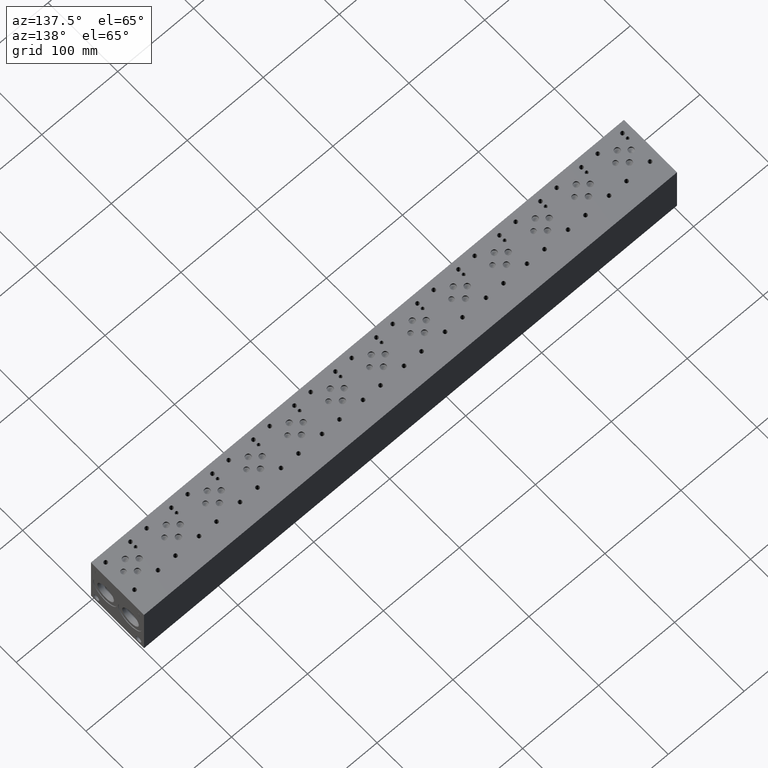
[diagram: clean part render]
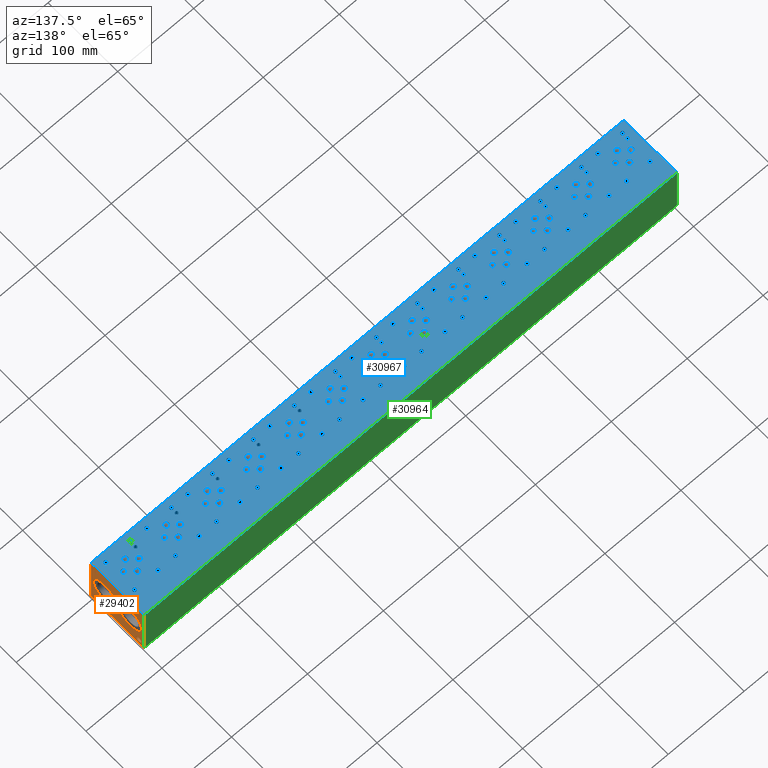
[diagram: same view with three faces highlighted in distinct colors, each labeled with its STEP entity id]
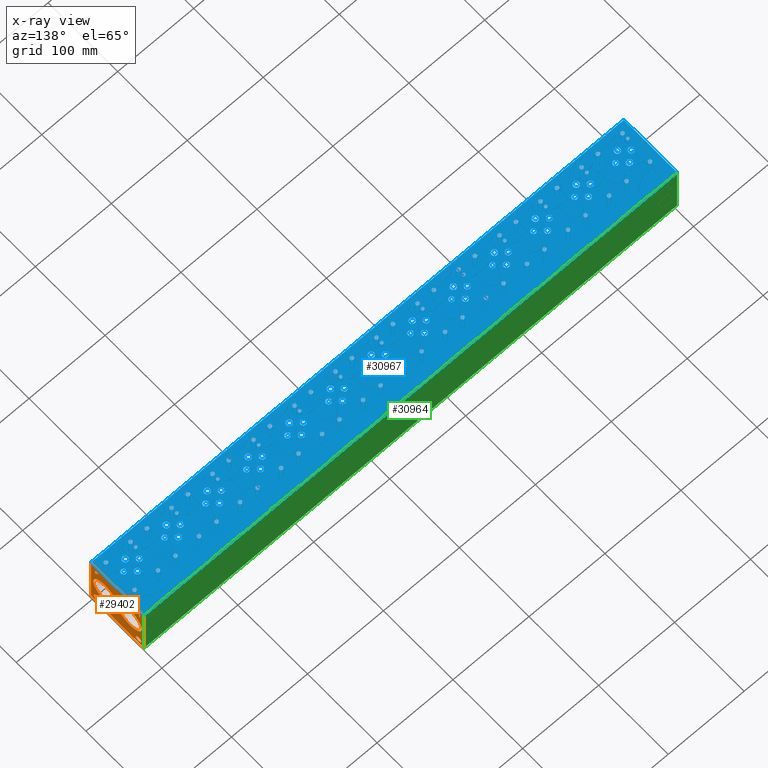
[diagram: x-ray of the same camera — body ghosted, the three highlighted faces saturated]
A machine part, auxiliary view with three faces highlighted in distinct colors.
The next image is the same camera in x-ray (body ghosted, the three faces saturated) — at least one of them is partly hidden behind the body in this view.
Their STEP definitions:

[orange] entity #29402 — the highlighted planar face has unit normal (1, 0, 0).
#965=CIRCLE('',#31082,3.9624);
#966=CIRCLE('',#31083,3.9624);
#967=CIRCLE('',#31084,3.9624);
#968=CIRCLE('',#31085,3.9624);
#969=CIRCLE('',#31086,17.0688);
#970=CIRCLE('',#31087,17.0688);
#971=CIRCLE('',#31088,17.0688);
#972=CIRCLE('',#31089,17.0688);
#2360=B_SPLINE_CURVE_WITH_KNOTS('',2,(#43305,#43306,#43307,#43308),
 .UNSPECIFIED.,.F.,.F.,(3,1,3),(0.,1.,2.),.UNSPECIFIED.);
#2362=B_SPLINE_CURVE_WITH_KNOTS('',2,(#43326,#43327,#43328,#43329),
 .UNSPECIFIED.,.F.,.F.,(3,1,3),(0.,1.,2.),.UNSPECIFIED.);
#2364=B_SPLINE_CURVE_WITH_KNOTS('',2,(#43375,#43376,#43377,#43378),
 .UNSPECIFIED.,.F.,.F.,(3,1,3),(0.,1.,2.),.UNSPECIFIED.);
#2366=B_SPLINE_CURVE_WITH_KNOTS('',2,(#43393,#43394,#43395,#43396),
 .UNSPECIFIED.,.F.,.F.,(3,1,3),(0.,1.,2.),.UNSPECIFIED.);
#2861=FACE_BOUND('',#4929,.T.);
#2862=FACE_BOUND('',#4930,.T.);
#2863=FACE_BOUND('',#4931,.T.);
#2864=FACE_BOUND('',#4932,.T.);
#2865=FACE_BOUND('',#4933,.T.);
#2866=FACE_BOUND('',#4934,.T.);
#3218=FACE_OUTER_BOUND('',#4928,.T.);
#4928=EDGE_LOOP('',(#19957,#19958,#19959,#19960));
#4929=EDGE_LOOP('',(#19961,#19962,#19963,#19964,#19965,#19966,#19967,#19968));
#4930=EDGE_LOOP('',(#19969,#19970));
#4931=EDGE_LOOP('',(#19971,#19972));
#4932=EDGE_LOOP('',(#19973,#19974));
#4933=EDGE_LOOP('',(#19975,#19976));
#4934=EDGE_LOOP('',(#19977,#19978,#19979,#19980,#19981,#19982,#19983,#19984,
#19985));
#6820=LINE('',#41201,#9271);
#7202=LINE('',#43155,#9653);
#7206=LINE('',#43163,#9657);
#7209=LINE('',#43169,#9660);
#7212=LINE('',#43175,#9663);
#7215=LINE('',#43181,#9666);
#7218=LINE('',#43187,#9669);
#7221=LINE('',#43193,#9672);
#7224=LINE('',#43198,#9675);
#7242=LINE('',#43338,#9693);
#7245=LINE('',#43344,#9696);
#7248=LINE('',#43350,#9699);
#7251=LINE('',#43356,#9702);
#7254=LINE('',#43362,#9705);
#7258=LINE('',#43404,#9709);
#7259=LINE('',#43406,#9710);
#7260=LINE('',#43407,#9711);
#9271=VECTOR('',#33609,10.);
#9653=VECTOR('',#34127,10.);
#9657=VECTOR('',#34133,10.);
#9660=VECTOR('',#34138,10.);
#9663=VECTOR('',#34143,10.);
#9666=VECTOR('',#34148,10.);
#9669=VECTOR('',#34153,10.);
#9672=VECTOR('',#34158,10.);
#9675=VECTOR('',#34163,10.);
#9693=VECTOR('',#34191,10.);
#9696=VECTOR('',#34196,10.);
#9699=VECTOR('',#34201,10.);
#9702=VECTOR('',#34206,10.);
#9705=VECTOR('',#34211,10.);
#9709=VECTOR('',#34219,10.);
#9710=VECTOR('',#34220,10.);
#9711=VECTOR('',#34221,10.);
#11711=VERTEX_POINT('',#41198);
#11712=VERTEX_POINT('',#41200);
#12319=VERTEX_POINT('',#43153);
#12320=VERTEX_POINT('',#43154);
#12323=VERTEX_POINT('',#43162);
#12325=VERTEX_POINT('',#43168);
#12327=VERTEX_POINT('',#43174);
#12329=VERTEX_POINT('',#43180);
#12331=VERTEX_POINT('',#43186);
#12333=VERTEX_POINT('',#43192);
#12349=VERTEX_POINT('',#43303);
#12350=VERTEX_POINT('',#43304);
#12353=VERTEX_POINT('',#43325);
#12355=VERTEX_POINT('',#43337);
#12357=VERTEX_POINT('',#43343);
#12359=VERTEX_POINT('',#43349);
#12361=VERTEX_POINT('',#43355);
#12363=VERTEX_POINT('',#43361);
#12365=VERTEX_POINT('',#43374);
#12367=VERTEX_POINT('',#43403);
#12368=VERTEX_POINT('',#43405);
#12369=VERTEX_POINT('',#43408);
#12370=VERTEX_POINT('',#43409);
#12371=VERTEX_POINT('',#43412);
#12372=VERTEX_POINT('',#43413);
#12373=VERTEX_POINT('',#43416);
#12374=VERTEX_POINT('',#43417);
#12375=VERTEX_POINT('',#43420);
#12376=VERTEX_POINT('',#43421);
#14783=EDGE_CURVE('',#11711,#11712,#6820,.T.);
#15415=EDGE_CURVE('',#12319,#12320,#7202,.T.);
#15419=EDGE_CURVE('',#12323,#12319,#7206,.T.);
#15422=EDGE_CURVE('',#12325,#12323,#7209,.T.);
#15425=EDGE_CURVE('',#12327,#12325,#7212,.T.);
#15428=EDGE_CURVE('',#12329,#12327,#7215,.T.);
#15431=EDGE_CURVE('',#12331,#12329,#7218,.T.);
#15434=EDGE_CURVE('',#12333,#12331,#7221,.T.);
#15437=EDGE_CURVE('',#12320,#12333,#7224,.T.);
#15460=EDGE_CURVE('',#12349,#12350,#2360,.T.);
#15464=EDGE_CURVE('',#12353,#12349,#2362,.T.);
#15467=EDGE_CURVE('',#12355,#12353,#7242,.T.);
#15470=EDGE_CURVE('',#12357,#12355,#7245,.T.);
#15473=EDGE_CURVE('',#12359,#12357,#7248,.T.);
#15476=EDGE_CURVE('',#12361,#12359,#7251,.T.);
#15479=EDGE_CURVE('',#12363,#12361,#7254,.T.);
#15482=EDGE_CURVE('',#12365,#12363,#2364,.T.);
#15485=EDGE_CURVE('',#12350,#12365,#2366,.T.);
#15487=EDGE_CURVE('',#11711,#12367,#7258,.T.);
#15488=EDGE_CURVE('',#12367,#12368,#7259,.T.);
#15489=EDGE_CURVE('',#11712,#12368,#7260,.T.);
#15490=EDGE_CURVE('',#12369,#12370,#965,.T.);
#15491=EDGE_CURVE('',#12370,#12369,#966,.T.);
#15492=EDGE_CURVE('',#12371,#12372,#967,.T.);
#15493=EDGE_CURVE('',#12372,#12371,#968,.T.);
#15494=EDGE_CURVE('',#12373,#12374,#969,.T.);
#15495=EDGE_CURVE('',#12374,#12373,#970,.T.);
#15496=EDGE_CURVE('',#12375,#12376,#971,.T.);
#15497=EDGE_CURVE('',#12376,#12375,#972,.T.);
#19957=ORIENTED_EDGE('',*,*,#15487,.T.);
#19958=ORIENTED_EDGE('',*,*,#15488,.T.);
#19959=ORIENTED_EDGE('',*,*,#15489,.F.);
#19960=ORIENTED_EDGE('',*,*,#14783,.F.);
#19961=ORIENTED_EDGE('',*,*,#15415,.T.);
#19962=ORIENTED_EDGE('',*,*,#15437,.T.);
#19963=ORIENTED_EDGE('',*,*,#15434,.T.);
#19964=ORIENTED_EDGE('',*,*,#15431,.T.);
#19965=ORIENTED_EDGE('',*,*,#15428,.T.);
#19966=ORIENTED_EDGE('',*,*,#15425,.T.);
#19967=ORIENTED_EDGE('',*,*,#15422,.T.);
#19968=ORIENTED_EDGE('',*,*,#15419,.T.);
#19969=ORIENTED_EDGE('',*,*,#15490,.T.);
#19970=ORIENTED_EDGE('',*,*,#15491,.T.);
#19971=ORIENTED_EDGE('',*,*,#15492,.T.);
#19972=ORIENTED_EDGE('',*,*,#15493,.T.);
#19973=ORIENTED_EDGE('',*,*,#15494,.T.);
#19974=ORIENTED_EDGE('',*,*,#15495,.T.);
#19975=ORIENTED_EDGE('',*,*,#15496,.T.);
#19976=ORIENTED_EDGE('',*,*,#15497,.T.);
#19977=ORIENTED_EDGE('',*,*,#15460,.T.);
#19978=ORIENTED_EDGE('',*,*,#15485,.T.);
#19979=ORIENTED_EDGE('',*,*,#15482,.T.);
#19980=ORIENTED_EDGE('',*,*,#15479,.T.);
#19981=ORIENTED_EDGE('',*,*,#15476,.T.);
#19982=ORIENTED_EDGE('',*,*,#15473,.T.);
#19983=ORIENTED_EDGE('',*,*,#15470,.T.);
#19984=ORIENTED_EDGE('',*,*,#15467,.T.);
#19985=ORIENTED_EDGE('',*,*,#15464,.T.);
#27765=PLANE('',#31081);
#29402=ADVANCED_FACE('',(#3218,#2861,#2862,#2863,#2864,#2865,#2866),#27765,
 .T.);
#31081=AXIS2_PLACEMENT_3D('',#43402,#34217,#34218);
#31082=AXIS2_PLACEMENT_3D('',#43410,#34222,#34223);
#31083=AXIS2_PLACEMENT_3D('',#43411,#34224,#34225);
#31084=AXIS2_PLACEMENT_3D('',#43414,#34226,#34227);
#31085=AXIS2_PLACEMENT_3D('',#43415,#34228,#34229);
#31086=AXIS2_PLACEMENT_3D('',#43418,#34230,#34231);
#31087=AXIS2_PLACEMENT_3D('',#43419,#34232,#34233);
#31088=AXIS2_PLACEMENT_3D('',#43422,#34234,#34235);
#31089=AXIS2_PLACEMENT_3D('',#43423,#34236,#34237);
#33609=DIRECTION('',(0.,0.,1.));
#34127=DIRECTION('',(0.,-1.,0.));
#34133=DIRECTION('',(0.,0.,-1.));
#34138=DIRECTION('',(0.,-1.,0.));
#34143=DIRECTION('',(0.,0.,-1.));
#34148=DIRECTION('',(0.,1.,0.));
#34153=DIRECTION('',(0.,0.,1.));
#34158=DIRECTION('',(0.,-1.,0.));
#34163=DIRECTION('',(0.,0.,1.));
#34191=DIRECTION('',(0.,1.,0.));
#34196=DIRECTION('',(0.,0.,1.));
#34201=DIRECTION('',(0.,-1.,0.));
#34206=DIRECTION('',(0.,0.,-1.));
#34211=DIRECTION('',(0.,-1.,0.));
#34217=DIRECTION('center_axis',(1.,0.,0.));
#34218=DIRECTION('ref_axis',(0.,1.,0.));
#34219=DIRECTION('',(0.,1.,0.));
#34220=DIRECTION('',(0.,0.,1.));
#34221=DIRECTION('',(0.,1.,0.));
#34222=DIRECTION('center_axis',(-1.,0.,0.));
#34223=DIRECTION('ref_axis',(0.,1.,0.));
#34224=DIRECTION('center_axis',(-1.,0.,0.));
#34225=DIRECTION('ref_axis',(0.,1.,0.));
#34226=DIRECTION('center_axis',(-1.,0.,0.));
#34227=DIRECTION('ref_axis',(0.,1.,0.));
#34228=DIRECTION('center_axis',(-1.,0.,0.));
#34229=DIRECTION('ref_axis',(0.,1.,0.));
#34230=DIRECTION('center_axis',(-1.,0.,0.));
#34231=DIRECTION('ref_axis',(0.,1.,0.));
#34232=DIRECTION('center_axis',(-1.,0.,0.));
#34233=DIRECTION('ref_axis',(0.,1.,0.));
#34234=DIRECTION('center_axis',(-1.,0.,0.));
#34235=DIRECTION('ref_axis',(0.,1.,0.));
#34236=DIRECTION('center_axis',(-1.,0.,0.));
#34237=DIRECTION('ref_axis',(0.,1.,0.));
#41198=CARTESIAN_POINT('',(701.675,0.,0.));
#41200=CARTESIAN_POINT('',(701.675,0.,76.2));
#41201=CARTESIAN_POINT('',(701.675,0.,0.));
#43153=CARTESIAN_POINT('',(701.675,70.437915271453,61.11875));
#43154=CARTESIAN_POINT('',(701.675,69.5939930799135,61.11875));
#43155=CARTESIAN_POINT('',(701.675,35.2189576357265,61.11875));
#43162=CARTESIAN_POINT('',(701.675,70.437915271453,66.7174533194816));
#43163=CARTESIAN_POINT('',(701.675,70.437915271453,33.3587266597408));
#43168=CARTESIAN_POINT('',(701.675,72.5683042183881,66.7174533194816));
#43169=CARTESIAN_POINT('',(701.675,36.284152109194,66.7174533194816));
#43174=CARTESIAN_POINT('',(701.675,72.5683042183881,67.4687499046326));
#43175=CARTESIAN_POINT('',(701.675,72.5683042183881,33.7343749523163));
#43180=CARTESIAN_POINT('',(701.675,67.4636041329784,67.4687499046326));
#43181=CARTESIAN_POINT('',(701.675,33.7318020664892,67.4687499046326));
#43186=CARTESIAN_POINT('',(701.675,67.4636041329784,66.7174533194816));
#43187=CARTESIAN_POINT('',(701.675,67.4636041329784,33.3587266597408));
#43192=CARTESIAN_POINT('',(701.675,69.5939930799135,66.7174533194816));
#43193=CARTESIAN_POINT('',(701.675,34.7969965399567,66.7174533194816));
#43198=CARTESIAN_POINT('',(701.675,69.5939930799135,30.559375));
#43303=CARTESIAN_POINT('',(701.675,9.45681720235939,67.0725181439707));
#43304=CARTESIAN_POINT('',(701.675,10.213259654532,65.5544873726039));
#43305=CARTESIAN_POINT('Ctrl Pts',(701.675,9.45681720235939,67.0725181439707));
#43306=CARTESIAN_POINT('Ctrl Pts',(701.675,9.81188202684857,66.8306623939564));
#43307=CARTESIAN_POINT('Ctrl Pts',(701.675,10.213259654532,66.0845116758269));
#43308=CARTESIAN_POINT('Ctrl Pts',(701.675,10.213259654532,65.5544873726039));
#43325=CARTESIAN_POINT('',(701.675,7.7947021543883,67.4687499046326));
#43326=CARTESIAN_POINT('Ctrl Pts',(701.675,7.7947021543883,67.4687499046326));
#43327=CARTESIAN_POINT('Ctrl Pts',(701.675,8.36074752676236,67.4687499046326));
#43328=CARTESIAN_POINT('Ctrl Pts',(701.675,9.15321104808603,67.2834986918556));
#43329=CARTESIAN_POINT('Ctrl Pts',(701.675,9.45681720235939,67.0725181439707));
#43337=CARTESIAN_POINT('',(701.675,6.19948337769779,67.4687499046326));
#43338=CARTESIAN_POINT('',(701.675,3.09974168884889,67.4687499046326));
#43343=CARTESIAN_POINT('',(701.675,6.19948337769779,61.11875));
#43344=CARTESIAN_POINT('',(701.675,6.19948337769779,30.559375));
#43349=CARTESIAN_POINT('',(701.675,7.04340556923729,61.11875));
#43350=CARTESIAN_POINT('',(701.675,3.52170278461864,61.11875));
#43355=CARTESIAN_POINT('',(701.675,7.04340556923729,63.4858488299279));
#43356=CARTESIAN_POINT('',(701.675,7.04340556923729,31.7429244149639));
#43361=CARTESIAN_POINT('',(701.675,7.75868108523723,63.4858488299279));
#43362=CARTESIAN_POINT('',(701.675,3.87934054261861,63.4858488299279));
#43374=CARTESIAN_POINT('',(701.675,9.6575060162011,64.1445198086904));
#43375=CARTESIAN_POINT('Ctrl Pts',(701.675,9.6575060162011,64.1445198086904));
#43376=CARTESIAN_POINT('Ctrl Pts',(701.675,9.32817052681983,63.8203301863307));
#43377=CARTESIAN_POINT('Ctrl Pts',(701.675,8.43793553208609,63.4858488299279));
#43378=CARTESIAN_POINT('Ctrl Pts',(701.675,7.75868108523723,63.4858488299279));
#43393=CARTESIAN_POINT('Ctrl Pts',(701.675,10.213259654532,65.5544873726039));
#43394=CARTESIAN_POINT('Ctrl Pts',(701.675,10.213259654532,65.1428180108774));
#43395=CARTESIAN_POINT('Ctrl Pts',(701.675,9.9199452343018,64.4018131597695));
#43396=CARTESIAN_POINT('Ctrl Pts',(701.675,9.6575060162011,64.1445198086904));
#43402=CARTESIAN_POINT('Origin',(701.675,0.,0.));
#43403=CARTESIAN_POINT('',(701.675,76.2,0.));
#43404=CARTESIAN_POINT('',(701.675,0.,0.));
#43405=CARTESIAN_POINT('',(701.675,76.2,76.2));
#43406=CARTESIAN_POINT('',(701.675,76.2,0.));
#43407=CARTESIAN_POINT('',(701.675,0.,76.2));
#43408=CARTESIAN_POINT('',(701.675,72.2376,7.9248));
#43409=CARTESIAN_POINT('',(701.675,64.3128,7.9248));
#43410=CARTESIAN_POINT('Origin',(701.675,68.2752,7.9248));
#43411=CARTESIAN_POINT('Origin',(701.675,68.2752,7.9248));
#43412=CARTESIAN_POINT('',(701.675,11.8872,7.9248));
#43413=CARTESIAN_POINT('',(701.675,3.9624,7.9248));
#43414=CARTESIAN_POINT('Origin',(701.675,7.9248,7.9248));
#43415=CARTESIAN_POINT('Origin',(701.675,7.9248,7.9248));
#43416=CARTESIAN_POINT('',(701.675,73.025,38.1));
#43417=CARTESIAN_POINT('',(701.675,38.8874,38.1));
#43418=CARTESIAN_POINT('Origin',(701.675,55.9562,38.1));
#43419=CARTESIAN_POINT('Origin',(701.675,55.9562,38.1));
#43420=CARTESIAN_POINT('',(701.675,37.3126,38.1));
#43421=CARTESIAN_POINT('',(701.675,3.175,38.1));
#43422=CARTESIAN_POINT('Origin',(701.675,20.2438,38.1));
#43423=CARTESIAN_POINT('Origin',(701.675,20.2438,38.1));

[blue] entity #30967 — the highlighted planar face has unit normal (0, 0, 1).
#1534=CIRCLE('',#32583,3.175);
#1535=CIRCLE('',#32584,3.175);
#1538=CIRCLE('',#32589,3.175);
#1539=CIRCLE('',#32590,3.175);
#1542=CIRCLE('',#32595,3.175);
#1543=CIRCLE('',#32596,3.175);
#1546=CIRCLE('',#32601,3.175);
#1547=CIRCLE('',#32602,3.175);
#1550=CIRCLE('',#32607,3.175);
#1551=CIRCLE('',#32608,3.175);
#1554=CIRCLE('',#32613,3.175);
#1555=CIRCLE('',#32614,3.175);
#1558=CIRCLE('',#32619,3.175);
#1559=CIRCLE('',#32620,3.175);
#1562=CIRCLE('',#32625,3.175);
#1563=CIRCLE('',#32626,3.175);
#1566=CIRCLE('',#32631,3.175);
#1567=CIRCLE('',#32632,3.175);
#1570=CIRCLE('',#32637,3.175);
#1571=CIRCLE('',#32638,3.175);
#1574=CIRCLE('',#32643,3.175);
#1575=CIRCLE('',#32644,3.175);
#1578=CIRCLE('',#32649,3.175);
#1579=CIRCLE('',#32650,3.175);
#1582=CIRCLE('',#32655,3.175);
#1583=CIRCLE('',#32656,3.175);
#1586=CIRCLE('',#32661,3.5687);
#1587=CIRCLE('',#32662,3.5687);
#1590=CIRCLE('',#32667,3.5687);
#1591=CIRCLE('',#32668,3.5687);
#1594=CIRCLE('',#32673,3.5687);
#1595=CIRCLE('',#32674,3.5687);
#1598=CIRCLE('',#32679,3.5687);
#1599=CIRCLE('',#32680,3.5687);
#1602=CIRCLE('',#32685,3.5687);
#1603=CIRCLE('',#32686,3.5687);
#1606=CIRCLE('',#32691,3.5687);
#1607=CIRCLE('',#32692,3.5687);
#1610=CIRCLE('',#32697,3.5687);
#1611=CIRCLE('',#32698,3.5687);
#1614=CIRCLE('',#32703,3.5687);
#1615=CIRCLE('',#32704,3.5687);
#1618=CIRCLE('',#32709,3.5687);
#1619=CIRCLE('',#32710,3.5687);
#1622=CIRCLE('',#32715,3.5687);
#1623=CIRCLE('',#32716,3.5687);
#1626=CIRCLE('',#32721,3.5687);
#1627=CIRCLE('',#32722,3.5687);
#1630=CIRCLE('',#32727,3.5687);
#1631=CIRCLE('',#32728,3.5687);
#1634=CIRCLE('',#32733,3.5687);
#1635=CIRCLE('',#32734,3.5687);
#1638=CIRCLE('',#32739,3.5687);
#1639=CIRCLE('',#32740,3.5687);
#1642=CIRCLE('',#32745,3.5687);
#1643=CIRCLE('',#32746,3.5687);
#1646=CIRCLE('',#32751,3.5687);
#1647=CIRCLE('',#32752,3.5687);
#1650=CIRCLE('',#32757,3.5687);
#1651=CIRCLE('',#32758,3.5687);
#1654=CIRCLE('',#32763,3.5687);
#1655=CIRCLE('',#32764,3.5687);
#1658=CIRCLE('',#32769,3.5687);
#1659=CIRCLE('',#32770,3.5687);
#1662=CIRCLE('',#32775,3.5687);
#1663=CIRCLE('',#32776,3.5687);
#1666=CIRCLE('',#32781,3.5687);
#1667=CIRCLE('',#32782,3.5687);
#1670=CIRCLE('',#32787,3.5687);
#1671=CIRCLE('',#32788,3.5687);
#1674=CIRCLE('',#32793,3.5687);
#1675=CIRCLE('',#32794,3.5687);
#1678=CIRCLE('',#32799,3.5687);
#1679=CIRCLE('',#32800,3.5687);
#1682=CIRCLE('',#32805,3.5687);
#1683=CIRCLE('',#32806,3.5687);
#1686=CIRCLE('',#32811,3.5687);
#1687=CIRCLE('',#32812,3.5687);
#1690=CIRCLE('',#32817,3.5687);
#1691=CIRCLE('',#32818,3.5687);
#1694=CIRCLE('',#32823,3.5687);
#1695=CIRCLE('',#32824,3.5687);
#1698=CIRCLE('',#32829,3.5687);
#1699=CIRCLE('',#32830,3.5687);
#1702=CIRCLE('',#32835,3.5687);
#1703=CIRCLE('',#32836,3.5687);
#1706=CIRCLE('',#32841,3.5687);
#1707=CIRCLE('',#32842,3.5687);
#1710=CIRCLE('',#32847,3.5687);
#1711=CIRCLE('',#32848,3.5687);
#1714=CIRCLE('',#32853,3.5687);
#1715=CIRCLE('',#32854,3.5687);
#1718=CIRCLE('',#32859,3.5687);
#1719=CIRCLE('',#32860,3.5687);
#1722=CIRCLE('',#32865,3.5687);
#1723=CIRCLE('',#32866,3.5687);
#1726=CIRCLE('',#32871,3.5687);
#1727=CIRCLE('',#32872,3.5687);
#1730=CIRCLE('',#32877,3.5687);
#1731=CIRCLE('',#32878,3.5687);
#1734=CIRCLE('',#32883,3.5687);
#1735=CIRCLE('',#32884,3.5687);
#1738=CIRCLE('',#32889,3.5687);
#1739=CIRCLE('',#32890,3.5687);
#1742=CIRCLE('',#32895,1.9812);
#1743=CIRCLE('',#32896,1.9812);
#1746=CIRCLE('',#32901,1.9812);
#1747=CIRCLE('',#32902,1.9812);
#1750=CIRCLE('',#32907,1.9812);
#1751=CIRCLE('',#32908,1.9812);
#1754=CIRCLE('',#32913,1.9812);
#1755=CIRCLE('',#32914,1.9812);
#1758=CIRCLE('',#32919,1.9812);
#1759=CIRCLE('',#32920,1.9812);
#1762=CIRCLE('',#32925,1.9812);
#1763=CIRCLE('',#32926,1.9812);
#1766=CIRCLE('',#32931,1.9812);
#1767=CIRCLE('',#32932,1.9812);
#1770=CIRCLE('',#32937,1.9812);
#1771=CIRCLE('',#32938,1.9812);
#1774=CIRCLE('',#32943,1.9812);
#1775=CIRCLE('',#32944,1.9812);
#1778=CIRCLE('',#32949,1.9812);
#1779=CIRCLE('',#32950,1.9812);
#1782=CIRCLE('',#32955,1.9812);
#1783=CIRCLE('',#32956,1.9812);
#1786=CIRCLE('',#32961,1.9812);
#1787=CIRCLE('',#32962,1.9812);
#1790=CIRCLE('',#32967,1.9812);
#1791=CIRCLE('',#32968,1.9812);
#1797=CIRCLE('',#32977,2.413);
#1798=CIRCLE('',#32978,2.413);
#1804=CIRCLE('',#32988,2.413);
#1805=CIRCLE('',#32989,2.413);
#1811=CIRCLE('',#32999,2.413);
#1812=CIRCLE('',#33000,2.413);
#1818=CIRCLE('',#33010,2.413);
#1819=CIRCLE('',#33011,2.413);
#1825=CIRCLE('',#33021,2.413);
#1826=CIRCLE('',#33022,2.413);
#1832=CIRCLE('',#33032,2.413);
#1833=CIRCLE('',#33033,2.413);
#1839=CIRCLE('',#33043,2.413);
#1840=CIRCLE('',#33044,2.413);
#1846=CIRCLE('',#33054,2.413);
#1847=CIRCLE('',#33055,2.413);
#1853=CIRCLE('',#33065,2.413);
#1854=CIRCLE('',#33066,2.413);
#1860=CIRCLE('',#33076,2.413);
#1861=CIRCLE('',#33077,2.413);
#1867=CIRCLE('',#33087,2.413);
#1868=CIRCLE('',#33088,2.413);
#1874=CIRCLE('',#33098,2.413);
#1875=CIRCLE('',#33099,2.413);
#1881=CIRCLE('',#33109,2.413);
#1882=CIRCLE('',#33110,2.413);
#1888=CIRCLE('',#33120,2.413);
#1889=CIRCLE('',#33121,2.413);
#1895=CIRCLE('',#33131,2.413);
#1896=CIRCLE('',#33132,2.413);
#1902=CIRCLE('',#33142,2.413);
#1903=CIRCLE('',#33143,2.413);
#1909=CIRCLE('',#33153,2.413);
#1910=CIRCLE('',#33154,2.413);
#1916=CIRCLE('',#33164,2.413);
#1917=CIRCLE('',#33165,2.413);
#1923=CIRCLE('',#33175,2.413);
#1924=CIRCLE('',#33176,2.413);
#1930=CIRCLE('',#33186,2.413);
#1931=CIRCLE('',#33187,2.413);
#1937=CIRCLE('',#33197,2.413);
#1938=CIRCLE('',#33198,2.413);
#1944=CIRCLE('',#33208,2.413);
#1945=CIRCLE('',#33209,2.413);
#1951=CIRCLE('',#33219,2.413);
#1952=CIRCLE('',#33220,2.413);
#1958=CIRCLE('',#33230,2.413);
#1959=CIRCLE('',#33231,2.413);
#1965=CIRCLE('',#33241,2.413);
#1966=CIRCLE('',#33242,2.413);
#1972=CIRCLE('',#33252,2.413);
#1973=CIRCLE('',#33253,2.413);
#1979=CIRCLE('',#33263,2.413);
#1980=CIRCLE('',#33264,2.413);
#1986=CIRCLE('',#33274,2.413);
#1987=CIRCLE('',#33275,2.413);
#1993=CIRCLE('',#33285,2.413);
#1994=CIRCLE('',#33286,2.413);
#2000=CIRCLE('',#33296,2.413);
#2001=CIRCLE('',#33297,2.413);
#2007=CIRCLE('',#33307,2.413);
#2008=CIRCLE('',#33308,2.413);
#2014=CIRCLE('',#33318,2.413);
#2015=CIRCLE('',#33319,2.413);
#2021=CIRCLE('',#33329,2.413);
#2022=CIRCLE('',#33330,2.413);
#2028=CIRCLE('',#33340,2.413);
#2029=CIRCLE('',#33341,2.413);
#2035=CIRCLE('',#33351,2.413);
#2036=CIRCLE('',#33352,2.413);
#2042=CIRCLE('',#33362,2.413);
#2043=CIRCLE('',#33363,2.413);
#2049=CIRCLE('',#33373,2.413);
#2050=CIRCLE('',#33374,2.413);
#2056=CIRCLE('',#33384,2.413);
#2057=CIRCLE('',#33385,2.413);
#2063=CIRCLE('',#33395,2.413);
#2064=CIRCLE('',#33396,2.413);
#2070=CIRCLE('',#33406,2.413);
#2071=CIRCLE('',#33407,2.413);
#2077=CIRCLE('',#33417,2.413);
#2078=CIRCLE('',#33418,2.413);
#2084=CIRCLE('',#33428,2.413);
#2085=CIRCLE('',#33429,2.413);
#2091=CIRCLE('',#33439,2.413);
#2092=CIRCLE('',#33440,2.413);
#2098=CIRCLE('',#33450,2.413);
#2099=CIRCLE('',#33451,2.413);
#2105=CIRCLE('',#33461,2.413);
#2106=CIRCLE('',#33462,2.413);
#2112=CIRCLE('',#33472,2.413);
#2113=CIRCLE('',#33473,2.413);
#2119=CIRCLE('',#33483,2.413);
#2120=CIRCLE('',#33484,2.413);
#2126=CIRCLE('',#33494,2.413);
#2127=CIRCLE('',#33495,2.413);
#2133=CIRCLE('',#33505,2.413);
#2134=CIRCLE('',#33506,2.413);
#2140=CIRCLE('',#33516,2.413);
#2141=CIRCLE('',#33517,2.413);
#2147=CIRCLE('',#33527,2.413);
#2148=CIRCLE('',#33528,2.413);
#2154=CIRCLE('',#33538,2.413);
#2155=CIRCLE('',#33539,2.413);
#3035=FACE_BOUND('',#6668,.T.);
#3036=FACE_BOUND('',#6669,.T.);
#3037=FACE_BOUND('',#6670,.T.);
#3038=FACE_BOUND('',#6671,.T.);
#3039=FACE_BOUND('',#6672,.T.);
#3040=FACE_BOUND('',#6673,.T.);
#3041=FACE_BOUND('',#6674,.T.);
#3042=FACE_BOUND('',#6675,.T.);
#3043=FACE_BOUND('',#6676,.T.);
#3044=FACE_BOUND('',#6677,.T.);
#3045=FACE_BOUND('',#6678,.T.);
#3046=FACE_BOUND('',#6679,.T.);
#3047=FACE_BOUND('',#6680,.T.);
#3048=FACE_BOUND('',#6681,.T.);
#3049=FACE_BOUND('',#6682,.T.);
#3050=FACE_BOUND('',#6683,.T.);
#3051=FACE_BOUND('',#6684,.T.);
#3052=FACE_BOUND('',#6685,.T.);
#3053=FACE_BOUND('',#6686,.T.);
#3054=FACE_BOUND('',#6687,.T.);
#3055=FACE_BOUND('',#6688,.T.);
#3056=FACE_BOUND('',#6689,.T.);
#3057=FACE_BOUND('',#6690,.T.);
#3058=FACE_BOUND('',#6691,.T.);
#3059=FACE_BOUND('',#6692,.T.);
#3060=FACE_BOUND('',#6693,.T.);
#3061=FACE_BOUND('',#6694,.T.);
#3062=FACE_BOUND('',#6695,.T.);
#3063=FACE_BOUND('',#6696,.T.);
#3064=FACE_BOUND('',#6697,.T.);
#3065=FACE_BOUND('',#6698,.T.);
#3066=FACE_BOUND('',#6699,.T.);
#3067=FACE_BOUND('',#6700,.T.);
#3068=FACE_BOUND('',#6701,.T.);
#3069=FACE_BOUND('',#6702,.T.);
#3070=FACE_BOUND('',#6703,.T.);
#3071=FACE_BOUND('',#6704,.T.);
#3072=FACE_BOUND('',#6705,.T.);
#3073=FACE_BOUND('',#6706,.T.);
#3074=FACE_BOUND('',#6707,.T.);
#3075=FACE_BOUND('',#6708,.T.);
#3076=FACE_BOUND('',#6709,.T.);
#3077=FACE_BOUND('',#6710,.T.);
#3078=FACE_BOUND('',#6711,.T.);
#3079=FACE_BOUND('',#6712,.T.);
#3080=FACE_BOUND('',#6713,.T.);
#3081=FACE_BOUND('',#6714,.T.);
#3082=FACE_BOUND('',#6715,.T.);
#3083=FACE_BOUND('',#6716,.T.);
#3084=FACE_BOUND('',#6717,.T.);
#3085=FACE_BOUND('',#6718,.T.);
#3086=FACE_BOUND('',#6719,.T.);
#3087=FACE_BOUND('',#6720,.T.);
#3088=FACE_BOUND('',#6721,.T.);
#3089=FACE_BOUND('',#6722,.T.);
#3090=FACE_BOUND('',#6723,.T.);
#3091=FACE_BOUND('',#6724,.T.);
#3092=FACE_BOUND('',#6725,.T.);
#3093=FACE_BOUND('',#6726,.T.);
#3094=FACE_BOUND('',#6727,.T.);
#3095=FACE_BOUND('',#6728,.T.);
#3096=FACE_BOUND('',#6729,.T.);
#3097=FACE_BOUND('',#6730,.T.);
#3098=FACE_BOUND('',#6731,.T.);
#3099=FACE_BOUND('',#6732,.T.);
#3100=FACE_BOUND('',#6733,.T.);
#3101=FACE_BOUND('',#6734,.T.);
#3102=FACE_BOUND('',#6735,.T.);
#3103=FACE_BOUND('',#6736,.T.);
#3104=FACE_BOUND('',#6737,.T.);
#3105=FACE_BOUND('',#6738,.T.);
#3106=FACE_BOUND('',#6739,.T.);
#3107=FACE_BOUND('',#6740,.T.);
#3108=FACE_BOUND('',#6741,.T.);
#3109=FACE_BOUND('',#6742,.T.);
#3110=FACE_BOUND('',#6743,.T.);
#3111=FACE_BOUND('',#6744,.T.);
#3112=FACE_BOUND('',#6745,.T.);
#3113=FACE_BOUND('',#6746,.T.);
#3114=FACE_BOUND('',#6747,.T.);
#3115=FACE_BOUND('',#6748,.T.);
#3116=FACE_BOUND('',#6749,.T.);
#3117=FACE_BOUND('',#6750,.T.);
#3118=FACE_BOUND('',#6751,.T.);
#3119=FACE_BOUND('',#6752,.T.);
#3120=FACE_BOUND('',#6753,.T.);
#3121=FACE_BOUND('',#6754,.T.);
#3122=FACE_BOUND('',#6755,.T.);
#3123=FACE_BOUND('',#6756,.T.);
#3124=FACE_BOUND('',#6757,.T.);
#3125=FACE_BOUND('',#6758,.T.);
#3126=FACE_BOUND('',#6759,.T.);
#3127=FACE_BOUND('',#6760,.T.);
#3128=FACE_BOUND('',#6761,.T.);
#3129=FACE_BOUND('',#6762,.T.);
#3130=FACE_BOUND('',#6763,.T.);
#3131=FACE_BOUND('',#6764,.T.);
#3132=FACE_BOUND('',#6765,.T.);
#3133=FACE_BOUND('',#6766,.T.);
#3134=FACE_BOUND('',#6767,.T.);
#3135=FACE_BOUND('',#6768,.T.);
#3136=FACE_BOUND('',#6769,.T.);
#3137=FACE_BOUND('',#6770,.T.);
#3138=FACE_BOUND('',#6771,.T.);
#3139=FACE_BOUND('',#6772,.T.);
#3140=FACE_BOUND('',#6773,.T.);
#3141=FACE_BOUND('',#6774,.T.);
#3142=FACE_BOUND('',#6775,.T.);
#3143=FACE_BOUND('',#6776,.T.);
#3144=FACE_BOUND('',#6777,.T.);
#3145=FACE_BOUND('',#6778,.T.);
#3146=FACE_BOUND('',#6779,.T.);
#3147=FACE_BOUND('',#6780,.T.);
#3148=FACE_BOUND('',#6781,.T.);
#3149=FACE_BOUND('',#6782,.T.);
#3150=FACE_BOUND('',#6783,.T.);
#3151=FACE_BOUND('',#6784,.T.);
#4783=FACE_OUTER_BOUND('',#6667,.T.);
#6667=EDGE_LOOP('',(#27479,#27480,#27481,#27482));
#6668=EDGE_LOOP('',(#27483,#27484));
#6669=EDGE_LOOP('',(#27485,#27486));
#6670=EDGE_LOOP('',(#27487,#27488));
#6671=EDGE_LOOP('',(#27489,#27490));
#6672=EDGE_LOOP('',(#27491,#27492));
#6673=EDGE_LOOP('',(#27493,#27494));
#6674=EDGE_LOOP('',(#27495,#27496));
#6675=EDGE_LOOP('',(#27497,#27498));
#6676=EDGE_LOOP('',(#27499,#27500));
#6677=EDGE_LOOP('',(#27501,#27502));
#6678=EDGE_LOOP('',(#27503,#27504));
#6679=EDGE_LOOP('',(#27505,#27506));
#6680=EDGE_LOOP('',(#27507,#27508));
#6681=EDGE_LOOP('',(#27509,#27510));
#6682=EDGE_LOOP('',(#27511,#27512));
#6683=EDGE_LOOP('',(#27513,#27514));
#6684=EDGE_LOOP('',(#27515,#27516));
#6685=EDGE_LOOP('',(#27517,#27518));
#6686=EDGE_LOOP('',(#27519,#27520));
#6687=EDGE_LOOP('',(#27521,#27522));
#6688=EDGE_LOOP('',(#27523,#27524));
#6689=EDGE_LOOP('',(#27525,#27526));
#6690=EDGE_LOOP('',(#27527,#27528));
#6691=EDGE_LOOP('',(#27529,#27530));
#6692=EDGE_LOOP('',(#27531,#27532));
#6693=EDGE_LOOP('',(#27533,#27534));
#6694=EDGE_LOOP('',(#27535,#27536));
#6695=EDGE_LOOP('',(#27537,#27538));
#6696=EDGE_LOOP('',(#27539,#27540));
#6697=EDGE_LOOP('',(#27541,#27542));
#6698=EDGE_LOOP('',(#27543,#27544));
#6699=EDGE_LOOP('',(#27545,#27546));
#6700=EDGE_LOOP('',(#27547,#27548));
#6701=EDGE_LOOP('',(#27549,#27550));
#6702=EDGE_LOOP('',(#27551,#27552));
#6703=EDGE_LOOP('',(#27553,#27554));
#6704=EDGE_LOOP('',(#27555,#27556));
#6705=EDGE_LOOP('',(#27557,#27558));
#6706=EDGE_LOOP('',(#27559,#27560));
#6707=EDGE_LOOP('',(#27561,#27562));
#6708=EDGE_LOOP('',(#27563,#27564));
#6709=EDGE_LOOP('',(#27565,#27566));
#6710=EDGE_LOOP('',(#27567,#27568));
#6711=EDGE_LOOP('',(#27569,#27570));
#6712=EDGE_LOOP('',(#27571,#27572));
#6713=EDGE_LOOP('',(#27573,#27574));
#6714=EDGE_LOOP('',(#27575,#27576));
#6715=EDGE_LOOP('',(#27577,#27578));
#6716=EDGE_LOOP('',(#27579,#27580));
#6717=EDGE_LOOP('',(#27581,#27582));
#6718=EDGE_LOOP('',(#27583,#27584));
#6719=EDGE_LOOP('',(#27585,#27586));
#6720=EDGE_LOOP('',(#27587,#27588));
#6721=EDGE_LOOP('',(#27589,#27590));
#6722=EDGE_LOOP('',(#27591,#27592));
#6723=EDGE_LOOP('',(#27593,#27594));
#6724=EDGE_LOOP('',(#27595,#27596));
#6725=EDGE_LOOP('',(#27597,#27598));
#6726=EDGE_LOOP('',(#27599,#27600));
#6727=EDGE_LOOP('',(#27601,#27602));
#6728=EDGE_LOOP('',(#27603,#27604));
#6729=EDGE_LOOP('',(#27605,#27606));
#6730=EDGE_LOOP('',(#27607,#27608));
#6731=EDGE_LOOP('',(#27609,#27610));
#6732=EDGE_LOOP('',(#27611,#27612));
#6733=EDGE_LOOP('',(#27613,#27614));
#6734=EDGE_LOOP('',(#27615,#27616));
#6735=EDGE_LOOP('',(#27617,#27618));
#6736=EDGE_LOOP('',(#27619,#27620));
#6737=EDGE_LOOP('',(#27621,#27622));
#6738=EDGE_LOOP('',(#27623,#27624));
#6739=EDGE_LOOP('',(#27625,#27626));
#6740=EDGE_LOOP('',(#27627,#27628));
#6741=EDGE_LOOP('',(#27629,#27630));
#6742=EDGE_LOOP('',(#27631,#27632));
#6743=EDGE_LOOP('',(#27633,#27634));
#6744=EDGE_LOOP('',(#27635,#27636));
#6745=EDGE_LOOP('',(#27637,#27638));
#6746=EDGE_LOOP('',(#27639,#27640));
#6747=EDGE_LOOP('',(#27641,#27642));
#6748=EDGE_LOOP('',(#27643,#27644));
#6749=EDGE_LOOP('',(#27645,#27646));
#6750=EDGE_LOOP('',(#27647,#27648));
#6751=EDGE_LOOP('',(#27649,#27650));
#6752=EDGE_LOOP('',(#27651,#27652));
#6753=EDGE_LOOP('',(#27653,#27654));
#6754=EDGE_LOOP('',(#27655,#27656));
#6755=EDGE_LOOP('',(#27657,#27658));
#6756=EDGE_LOOP('',(#27659,#27660));
#6757=EDGE_LOOP('',(#27661,#27662));
#6758=EDGE_LOOP('',(#27663,#27664));
#6759=EDGE_LOOP('',(#27665,#27666));
#6760=EDGE_LOOP('',(#27667,#27668));
#6761=EDGE_LOOP('',(#27669,#27670));
#6762=EDGE_LOOP('',(#27671,#27672));
#6763=EDGE_LOOP('',(#27673,#27674));
#6764=EDGE_LOOP('',(#27675,#27676));
#6765=EDGE_LOOP('',(#27677,#27678));
#6766=EDGE_LOOP('',(#27679,#27680));
#6767=EDGE_LOOP('',(#27681,#27682));
#6768=EDGE_LOOP('',(#27683,#27684));
#6769=EDGE_LOOP('',(#27685,#27686));
#6770=EDGE_LOOP('',(#27687,#27688));
#6771=EDGE_LOOP('',(#27689,#27690));
#6772=EDGE_LOOP('',(#27691,#27692));
#6773=EDGE_LOOP('',(#27693,#27694));
#6774=EDGE_LOOP('',(#27695,#27696));
#6775=EDGE_LOOP('',(#27697,#27698));
#6776=EDGE_LOOP('',(#27699,#27700));
#6777=EDGE_LOOP('',(#27701,#27702));
#6778=EDGE_LOOP('',(#27703,#27704));
#6779=EDGE_LOOP('',(#27705,#27706));
#6780=EDGE_LOOP('',(#27707,#27708));
#6781=EDGE_LOOP('',(#27709,#27710));
#6782=EDGE_LOOP('',(#27711,#27712));
#6783=EDGE_LOOP('',(#27713,#27714));
#6784=EDGE_LOOP('',(#27715,#27716));
#6821=LINE('',#41203,#9272);
#7260=LINE('',#43407,#9711);
#7318=LINE('',#43678,#9769);
#9236=LINE('',#54224,#11687);
#9272=VECTOR('',#33610,10.);
#9711=VECTOR('',#34221,10.);
#9769=VECTOR('',#34333,10.);
#11687=VECTOR('',#41119,10.);
#11712=VERTEX_POINT('',#41200);
#11713=VERTEX_POINT('',#41202);
#12368=VERTEX_POINT('',#43405);
#12426=VERTEX_POINT('',#43677);
#14011=VERTEX_POINT('',#52240);
#14012=VERTEX_POINT('',#52241);
#14016=VERTEX_POINT('',#52253);
#14017=VERTEX_POINT('',#52254);
#14021=VERTEX_POINT('',#52266);
#14022=VERTEX_POINT('',#52267);
#14026=VERTEX_POINT('',#52279);
#14027=VERTEX_POINT('',#52280);
#14031=VERTEX_POINT('',#52292);
#14032=VERTEX_POINT('',#52293);
#14036=VERTEX_POINT('',#52305);
#14037=VERTEX_POINT('',#52306);
#14041=VERTEX_POINT('',#52318);
#14042=VERTEX_POINT('',#52319);
#14046=VERTEX_POINT('',#52331);
#14047=VERTEX_POINT('',#52332);
#14051=VERTEX_POINT('',#52344);
#14052=VERTEX_POINT('',#52345);
#14056=VERTEX_POINT('',#52357);
#14057=VERTEX_POINT('',#52358);
#14061=VERTEX_POINT('',#52370);
#14062=VERTEX_POINT('',#52371);
#14066=VERTEX_POINT('',#52383);
#14067=VERTEX_POINT('',#52384);
#14071=VERTEX_POINT('',#52396);
#14072=VERTEX_POINT('',#52397);
#14076=VERTEX_POINT('',#52409);
#14077=VERTEX_POINT('',#52410);
#14081=VERTEX_POINT('',#52422);
#14082=VERTEX_POINT('',#52423);
#14086=VERTEX_POINT('',#52435);
#14087=VERTEX_POINT('',#52436);
#14091=VERTEX_POINT('',#52448);
#14092=VERTEX_POINT('',#52449);
#14096=VERTEX_POINT('',#52461);
#14097=VERTEX_POINT('',#52462);
#14101=VERTEX_POINT('',#52474);
#14102=VERTEX_POINT('',#52475);
#14106=VERTEX_POINT('',#52487);
#14107=VERTEX_POINT('',#52488);
#14111=VERTEX_POINT('',#52500);
#14112=VERTEX_POINT('',#52501);
#14116=VERTEX_POINT('',#52513);
#14117=VERTEX_POINT('',#52514);
#14121=VERTEX_POINT('',#52526);
#14122=VERTEX_POINT('',#52527);
#14126=VERTEX_POINT('',#52539);
#14127=VERTEX_POINT('',#52540);
#14131=VERTEX_POINT('',#52552);
#14132=VERTEX_POINT('',#52553);
#14136=VERTEX_POINT('',#52565);
#14137=VERTEX_POINT('',#52566);
#14141=VERTEX_POINT('',#52578);
#14142=VERTEX_POINT('',#52579);
#14146=VERTEX_POINT('',#52591);
#14147=VERTEX_POINT('',#52592);
#14151=VERTEX_POINT('',#52604);
#14152=VERTEX_POINT('',#52605);
#14156=VERTEX_POINT('',#52617);
#14157=VERTEX_POINT('',#52618);
#14161=VERTEX_POINT('',#52630);
#14162=VERTEX_POINT('',#52631);
#14166=VERTEX_POINT('',#52643);
#14167=VERTEX_POINT('',#52644);
#14171=VERTEX_POINT('',#52656);
#14172=VERTEX_POINT('',#52657);
#14176=VERTEX_POINT('',#52669);
#14177=VERTEX_POINT('',#52670);
#14181=VERTEX_POINT('',#52682);
#14182=VERTEX_POINT('',#52683);
#14186=VERTEX_POINT('',#52695);
#14187=VERTEX_POINT('',#52696);
#14191=VERTEX_POINT('',#52708);
#14192=VERTEX_POINT('',#52709);
#14196=VERTEX_POINT('',#52721);
#14197=VERTEX_POINT('',#52722);
#14201=VERTEX_POINT('',#52734);
#14202=VERTEX_POINT('',#52735);
#14206=VERTEX_POINT('',#52747);
#14207=VERTEX_POINT('',#52748);
#14211=VERTEX_POINT('',#52760);
#14212=VERTEX_POINT('',#52761);
#14216=VERTEX_POINT('',#52773);
#14217=VERTEX_POINT('',#52774);
#14221=VERTEX_POINT('',#52786);
#14222=VERTEX_POINT('',#52787);
#14226=VERTEX_POINT('',#52799);
#14227=VERTEX_POINT('',#52800);
#14231=VERTEX_POINT('',#52812);
#14232=VERTEX_POINT('',#52813);
#14236=VERTEX_POINT('',#52825);
#14237=VERTEX_POINT('',#52826);
#14241=VERTEX_POINT('',#52838);
#14242=VERTEX_POINT('',#52839);
#14246=VERTEX_POINT('',#52851);
#14247=VERTEX_POINT('',#52852);
#14251=VERTEX_POINT('',#52864);
#14252=VERTEX_POINT('',#52865);
#14256=VERTEX_POINT('',#52877);
#14257=VERTEX_POINT('',#52878);
#14261=VERTEX_POINT('',#52890);
#14262=VERTEX_POINT('',#52891);
#14266=VERTEX_POINT('',#52903);
#14267=VERTEX_POINT('',#52904);
#14271=VERTEX_POINT('',#52916);
#14272=VERTEX_POINT('',#52917);
#14276=VERTEX_POINT('',#52929);
#14277=VERTEX_POINT('',#52930);
#14281=VERTEX_POINT('',#52942);
#14282=VERTEX_POINT('',#52943);
#14286=VERTEX_POINT('',#52955);
#14287=VERTEX_POINT('',#52956);
#14291=VERTEX_POINT('',#52968);
#14292=VERTEX_POINT('',#52969);
#14296=VERTEX_POINT('',#52981);
#14297=VERTEX_POINT('',#52982);
#14301=VERTEX_POINT('',#52994);
#14302=VERTEX_POINT('',#52995);
#14306=VERTEX_POINT('',#53007);
#14307=VERTEX_POINT('',#53008);
#14311=VERTEX_POINT('',#53020);
#14312=VERTEX_POINT('',#53021);
#14316=VERTEX_POINT('',#53033);
#14317=VERTEX_POINT('',#53034);
#14321=VERTEX_POINT('',#53046);
#14322=VERTEX_POINT('',#53047);
#14326=VERTEX_POINT('',#53059);
#14327=VERTEX_POINT('',#53060);
#14331=VERTEX_POINT('',#53072);
#14332=VERTEX_POINT('',#53073);
#14339=VERTEX_POINT('',#53092);
#14340=VERTEX_POINT('',#53093);
#14347=VERTEX_POINT('',#53114);
#14348=VERTEX_POINT('',#53115);
#14355=VERTEX_POINT('',#53136);
#14356=VERTEX_POINT('',#53137);
#14363=VERTEX_POINT('',#53158);
#14364=VERTEX_POINT('',#53159);
#14371=VERTEX_POINT('',#53180);
#14372=VERTEX_POINT('',#53181);
#14379=VERTEX_POINT('',#53202);
#14380=VERTEX_POINT('',#53203);
#14387=VERTEX_POINT('',#53224);
#14388=VERTEX_POINT('',#53225);
#14395=VERTEX_POINT('',#53246);
#14396=VERTEX_POINT('',#53247);
#14403=VERTEX_POINT('',#53268);
#14404=VERTEX_POINT('',#53269);
#14411=VERTEX_POINT('',#53290);
#14412=VERTEX_POINT('',#53291);
#14419=VERTEX_POINT('',#53312);
#14420=VERTEX_POINT('',#53313);
#14427=VERTEX_POINT('',#53334);
#14428=VERTEX_POINT('',#53335);
#14435=VERTEX_POINT('',#53356);
#14436=VERTEX_POINT('',#53357);
#14443=VERTEX_POINT('',#53378);
#14444=VERTEX_POINT('',#53379);
#14451=VERTEX_POINT('',#53400);
#14452=VERTEX_POINT('',#53401);
#14459=VERTEX_POINT('',#53422);
#14460=VERTEX_POINT('',#53423);
#14467=VERTEX_POINT('',#53444);
#14468=VERTEX_POINT('',#53445);
#14475=VERTEX_POINT('',#53466);
#14476=VERTEX_POINT('',#53467);
#14483=VERTEX_POINT('',#53488);
#14484=VERTEX_POINT('',#53489);
#14491=VERTEX_POINT('',#53510);
#14492=VERTEX_POINT('',#53511);
#14499=VERTEX_POINT('',#53532);
#14500=VERTEX_POINT('',#53533);
#14507=VERTEX_POINT('',#53554);
#14508=VERTEX_POINT('',#53555);
#14515=VERTEX_POINT('',#53576);
#14516=VERTEX_POINT('',#53577);
#14523=VERTEX_POINT('',#53598);
#14524=VERTEX_POINT('',#53599);
#14531=VERTEX_POINT('',#53620);
#14532=VERTEX_POINT('',#53621);
#14539=VERTEX_POINT('',#53642);
#14540=VERTEX_POINT('',#53643);
#14547=VERTEX_POINT('',#53664);
#14548=VERTEX_POINT('',#53665);
#14555=VERTEX_POINT('',#53686);
#14556=VERTEX_POINT('',#53687);
#14563=VERTEX_POINT('',#53708);
#14564=VERTEX_POINT('',#53709);
#14571=VERTEX_POINT('',#53730);
#14572=VERTEX_POINT('',#53731);
#14579=VERTEX_POINT('',#53752);
#14580=VERTEX_POINT('',#53753);
#14587=VERTEX_POINT('',#53774);
#14588=VERTEX_POINT('',#53775);
#14595=VERTEX_POINT('',#53796);
#14596=VERTEX_POINT('',#53797);
#14603=VERTEX_POINT('',#53818);
#14604=VERTEX_POINT('',#53819);
#14611=VERTEX_POINT('',#53840);
#14612=VERTEX_POINT('',#53841);
#14619=VERTEX_POINT('',#53862);
#14620=VERTEX_POINT('',#53863);
#14627=VERTEX_POINT('',#53884);
#14628=VERTEX_POINT('',#53885);
#14635=VERTEX_POINT('',#53906);
#14636=VERTEX_POINT('',#53907);
#14643=VERTEX_POINT('',#53928);
#14644=VERTEX_POINT('',#53929);
#14651=VERTEX_POINT('',#53950);
#14652=VERTEX_POINT('',#53951);
#14659=VERTEX_POINT('',#53972);
#14660=VERTEX_POINT('',#53973);
#14667=VERTEX_POINT('',#53994);
#14668=VERTEX_POINT('',#53995);
#14675=VERTEX_POINT('',#54016);
#14676=VERTEX_POINT('',#54017);
#14683=VERTEX_POINT('',#54038);
#14684=VERTEX_POINT('',#54039);
#14691=VERTEX_POINT('',#54060);
#14692=VERTEX_POINT('',#54061);
#14699=VERTEX_POINT('',#54082);
#14700=VERTEX_POINT('',#54083);
#14707=VERTEX_POINT('',#54104);
#14708=VERTEX_POINT('',#54105);
#14715=VERTEX_POINT('',#54126);
#14716=VERTEX_POINT('',#54127);
#14723=VERTEX_POINT('',#54148);
#14724=VERTEX_POINT('',#54149);
#14731=VERTEX_POINT('',#54170);
#14732=VERTEX_POINT('',#54171);
#14739=VERTEX_POINT('',#54192);
#14740=VERTEX_POINT('',#54193);
#14747=VERTEX_POINT('',#54214);
#14748=VERTEX_POINT('',#54215);
#14784=EDGE_CURVE('',#11713,#11712,#6821,.T.);
#15489=EDGE_CURVE('',#11712,#12368,#7260,.T.);
#15571=EDGE_CURVE('',#12426,#11713,#7318,.T.);
#18164=EDGE_CURVE('',#14011,#14012,#1534,.T.);
#18165=EDGE_CURVE('',#14012,#14011,#1535,.T.);
#18170=EDGE_CURVE('',#14016,#14017,#1538,.T.);
#18171=EDGE_CURVE('',#14017,#14016,#1539,.T.);
#18176=EDGE_CURVE('',#14021,#14022,#1542,.T.);
#18177=EDGE_CURVE('',#14022,#14021,#1543,.T.);
#18182=EDGE_CURVE('',#14026,#14027,#1546,.T.);
#18183=EDGE_CURVE('',#14027,#14026,#1547,.T.);
#18188=EDGE_CURVE('',#14031,#14032,#1550,.T.);
#18189=EDGE_CURVE('',#14032,#14031,#1551,.T.);
#18194=EDGE_CURVE('',#14036,#14037,#1554,.T.);
#18195=EDGE_CURVE('',#14037,#14036,#1555,.T.);
#18200=EDGE_CURVE('',#14041,#14042,#1558,.T.);
#18201=EDGE_CURVE('',#14042,#14041,#1559,.T.);
#18206=EDGE_CURVE('',#14046,#14047,#1562,.T.);
#18207=EDGE_CURVE('',#14047,#14046,#1563,.T.);
#18212=EDGE_CURVE('',#14051,#14052,#1566,.T.);
#18213=EDGE_CURVE('',#14052,#14051,#1567,.T.);
#18218=EDGE_CURVE('',#14056,#14057,#1570,.T.);
#18219=EDGE_CURVE('',#14057,#14056,#1571,.T.);
#18224=EDGE_CURVE('',#14061,#14062,#1574,.T.);
#18225=EDGE_CURVE('',#14062,#14061,#1575,.T.);
#18230=EDGE_CURVE('',#14066,#14067,#1578,.T.);
#18231=EDGE_CURVE('',#14067,#14066,#1579,.T.);
#18236=EDGE_CURVE('',#14071,#14072,#1582,.T.);
#18237=EDGE_CURVE('',#14072,#14071,#1583,.T.);
#18242=EDGE_CURVE('',#14076,#14077,#1586,.T.);
#18243=EDGE_CURVE('',#14077,#14076,#1587,.T.);
#18248=EDGE_CURVE('',#14081,#14082,#1590,.T.);
#18249=EDGE_CURVE('',#14082,#14081,#1591,.T.);
#18254=EDGE_CURVE('',#14086,#14087,#1594,.T.);
#18255=EDGE_CURVE('',#14087,#14086,#1595,.T.);
#18260=EDGE_CURVE('',#14091,#14092,#1598,.T.);
#18261=EDGE_CURVE('',#14092,#14091,#1599,.T.);
#18266=EDGE_CURVE('',#14096,#14097,#1602,.T.);
#18267=EDGE_CURVE('',#14097,#14096,#1603,.T.);
#18272=EDGE_CURVE('',#14101,#14102,#1606,.T.);
#18273=EDGE_CURVE('',#14102,#14101,#1607,.T.);
#18278=EDGE_CURVE('',#14106,#14107,#1610,.T.);
#18279=EDGE_CURVE('',#14107,#14106,#1611,.T.);
#18284=EDGE_CURVE('',#14111,#14112,#1614,.T.);
#18285=EDGE_CURVE('',#14112,#14111,#1615,.T.);
#18290=EDGE_CURVE('',#14116,#14117,#1618,.T.);
#18291=EDGE_CURVE('',#14117,#14116,#1619,.T.);
#18296=EDGE_CURVE('',#14121,#14122,#1622,.T.);
#18297=EDGE_CURVE('',#14122,#14121,#1623,.T.);
#18302=EDGE_CURVE('',#14126,#14127,#1626,.T.);
#18303=EDGE_CURVE('',#14127,#14126,#1627,.T.);
#18308=EDGE_CURVE('',#14131,#14132,#1630,.T.);
#18309=EDGE_CURVE('',#14132,#14131,#1631,.T.);
#18314=EDGE_CURVE('',#14136,#14137,#1634,.T.);
#18315=EDGE_CURVE('',#14137,#14136,#1635,.T.);
#18320=EDGE_CURVE('',#14141,#14142,#1638,.T.);
#18321=EDGE_CURVE('',#14142,#14141,#1639,.T.);
#18326=EDGE_CURVE('',#14146,#14147,#1642,.T.);
#18327=EDGE_CURVE('',#14147,#14146,#1643,.T.);
#18332=EDGE_CURVE('',#14151,#14152,#1646,.T.);
#18333=EDGE_CURVE('',#14152,#14151,#1647,.T.);
#18338=EDGE_CURVE('',#14156,#14157,#1650,.T.);
#18339=EDGE_CURVE('',#14157,#14156,#1651,.T.);
#18344=EDGE_CURVE('',#14161,#14162,#1654,.T.);
#18345=EDGE_CURVE('',#14162,#14161,#1655,.T.);
#18350=EDGE_CURVE('',#14166,#14167,#1658,.T.);
#18351=EDGE_CURVE('',#14167,#14166,#1659,.T.);
#18356=EDGE_CURVE('',#14171,#14172,#1662,.T.);
#18357=EDGE_CURVE('',#14172,#14171,#1663,.T.);
#18362=EDGE_CURVE('',#14176,#14177,#1666,.T.);
#18363=EDGE_CURVE('',#14177,#14176,#1667,.T.);
#18368=EDGE_CURVE('',#14181,#14182,#1670,.T.);
#18369=EDGE_CURVE('',#14182,#14181,#1671,.T.);
#18374=EDGE_CURVE('',#14186,#14187,#1674,.T.);
#18375=EDGE_CURVE('',#14187,#14186,#1675,.T.);
#18380=EDGE_CURVE('',#14191,#14192,#1678,.T.);
#18381=EDGE_CURVE('',#14192,#14191,#1679,.T.);
#18386=EDGE_CURVE('',#14196,#14197,#1682,.T.);
#18387=EDGE_CURVE('',#14197,#14196,#1683,.T.);
#18392=EDGE_CURVE('',#14201,#14202,#1686,.T.);
#18393=EDGE_CURVE('',#14202,#14201,#1687,.T.);
#18398=EDGE_CURVE('',#14206,#14207,#1690,.T.);
#18399=EDGE_CURVE('',#14207,#14206,#1691,.T.);
#18404=EDGE_CURVE('',#14211,#14212,#1694,.T.);
#18405=EDGE_CURVE('',#14212,#14211,#1695,.T.);
#18410=EDGE_CURVE('',#14216,#14217,#1698,.T.);
#18411=EDGE_CURVE('',#14217,#14216,#1699,.T.);
#18416=EDGE_CURVE('',#14221,#14222,#1702,.T.);
#18417=EDGE_CURVE('',#14222,#14221,#1703,.T.);
#18422=EDGE_CURVE('',#14226,#14227,#1706,.T.);
#18423=EDGE_CURVE('',#14227,#14226,#1707,.T.);
#18428=EDGE_CURVE('',#14231,#14232,#1710,.T.);
#18429=EDGE_CURVE('',#14232,#14231,#1711,.T.);
#18434=EDGE_CURVE('',#14236,#14237,#1714,.T.);
#18435=EDGE_CURVE('',#14237,#14236,#1715,.T.);
#18440=EDGE_CURVE('',#14241,#14242,#1718,.T.);
#18441=EDGE_CURVE('',#14242,#14241,#1719,.T.);
#18446=EDGE_CURVE('',#14246,#14247,#1722,.T.);
#18447=EDGE_CURVE('',#14247,#14246,#1723,.T.);
#18452=EDGE_CURVE('',#14251,#14252,#1726,.T.);
#18453=EDGE_CURVE('',#14252,#14251,#1727,.T.);
#18458=EDGE_CURVE('',#14256,#14257,#1730,.T.);
#18459=EDGE_CURVE('',#14257,#14256,#1731,.T.);
#18464=EDGE_CURVE('',#14261,#14262,#1734,.T.);
#18465=EDGE_CURVE('',#14262,#14261,#1735,.T.);
#18470=EDGE_CURVE('',#14266,#14267,#1738,.T.);
#18471=EDGE_CURVE('',#14267,#14266,#1739,.T.);
#18476=EDGE_CURVE('',#14271,#14272,#1742,.T.);
#18477=EDGE_CURVE('',#14272,#14271,#1743,.T.);
#18482=EDGE_CURVE('',#14276,#14277,#1746,.T.);
#18483=EDGE_CURVE('',#14277,#14276,#1747,.T.);
#18488=EDGE_CURVE('',#14281,#14282,#1750,.T.);
#18489=EDGE_CURVE('',#14282,#14281,#1751,.T.);
#18494=EDGE_CURVE('',#14286,#14287,#1754,.T.);
#18495=EDGE_CURVE('',#14287,#14286,#1755,.T.);
#18500=EDGE_CURVE('',#14291,#14292,#1758,.T.);
#18501=EDGE_CURVE('',#14292,#14291,#1759,.T.);
#18506=EDGE_CURVE('',#14296,#14297,#1762,.T.);
#18507=EDGE_CURVE('',#14297,#14296,#1763,.T.);
#18512=EDGE_CURVE('',#14301,#14302,#1766,.T.);
#18513=EDGE_CURVE('',#14302,#14301,#1767,.T.);
#18518=EDGE_CURVE('',#14306,#14307,#1770,.T.);
#18519=EDGE_CURVE('',#14307,#14306,#1771,.T.);
#18524=EDGE_CURVE('',#14311,#14312,#1774,.T.);
#18525=EDGE_CURVE('',#14312,#14311,#1775,.T.);
#18530=EDGE_CURVE('',#14316,#14317,#1778,.T.);
#18531=EDGE_CURVE('',#14317,#14316,#1779,.T.);
#18536=EDGE_CURVE('',#14321,#14322,#1782,.T.);
#18537=EDGE_CURVE('',#14322,#14321,#1783,.T.);
#18542=EDGE_CURVE('',#14326,#14327,#1786,.T.);
#18543=EDGE_CURVE('',#14327,#14326,#1787,.T.);
#18548=EDGE_CURVE('',#14331,#14332,#1790,.T.);
#18549=EDGE_CURVE('',#14332,#14331,#1791,.T.);
#18557=EDGE_CURVE('',#14339,#14340,#1797,.T.);
#18558=EDGE_CURVE('',#14340,#14339,#1798,.T.);
#18567=EDGE_CURVE('',#14347,#14348,#1804,.T.);
#18568=EDGE_CURVE('',#14348,#14347,#1805,.T.);
#18577=EDGE_CURVE('',#14355,#14356,#1811,.T.);
#18578=EDGE_CURVE('',#14356,#14355,#1812,.T.);
#18587=EDGE_CURVE('',#14363,#14364,#1818,.T.);
#18588=EDGE_CURVE('',#14364,#14363,#1819,.T.);
#18597=EDGE_CURVE('',#14371,#14372,#1825,.T.);
#18598=EDGE_CURVE('',#14372,#14371,#1826,.T.);
#18607=EDGE_CURVE('',#14379,#14380,#1832,.T.);
#18608=EDGE_CURVE('',#14380,#14379,#1833,.T.);
#18617=EDGE_CURVE('',#14387,#14388,#1839,.T.);
#18618=EDGE_CURVE('',#14388,#14387,#1840,.T.);
#18627=EDGE_CURVE('',#14395,#14396,#1846,.T.);
#18628=EDGE_CURVE('',#14396,#14395,#1847,.T.);
#18637=EDGE_CURVE('',#14403,#14404,#1853,.T.);
#18638=EDGE_CURVE('',#14404,#14403,#1854,.T.);
#18647=EDGE_CURVE('',#14411,#14412,#1860,.T.);
#18648=EDGE_CURVE('',#14412,#14411,#1861,.T.);
#18657=EDGE_CURVE('',#14419,#14420,#1867,.T.);
#18658=EDGE_CURVE('',#14420,#14419,#1868,.T.);
#18667=EDGE_CURVE('',#14427,#14428,#1874,.T.);
#18668=EDGE_CURVE('',#14428,#14427,#1875,.T.);
#18677=EDGE_CURVE('',#14435,#14436,#1881,.T.);
#18678=EDGE_CURVE('',#14436,#14435,#1882,.T.);
#18687=EDGE_CURVE('',#14443,#14444,#1888,.T.);
#18688=EDGE_CURVE('',#14444,#14443,#1889,.T.);
#18697=EDGE_CURVE('',#14451,#14452,#1895,.T.);
#18698=EDGE_CURVE('',#14452,#14451,#1896,.T.);
#18707=EDGE_CURVE('',#14459,#14460,#1902,.T.);
#18708=EDGE_CURVE('',#14460,#14459,#1903,.T.);
#18717=EDGE_CURVE('',#14467,#14468,#1909,.T.);
#18718=EDGE_CURVE('',#14468,#14467,#1910,.T.);
#18727=EDGE_CURVE('',#14475,#14476,#1916,.T.);
#18728=EDGE_CURVE('',#14476,#14475,#1917,.T.);
#18737=EDGE_CURVE('',#14483,#14484,#1923,.T.);
#18738=EDGE_CURVE('',#14484,#14483,#1924,.T.);
#18747=EDGE_CURVE('',#14491,#14492,#1930,.T.);
#18748=EDGE_CURVE('',#14492,#14491,#1931,.T.);
#18757=EDGE_CURVE('',#14499,#14500,#1937,.T.);
#18758=EDGE_CURVE('',#14500,#14499,#1938,.T.);
#18767=EDGE_CURVE('',#14507,#14508,#1944,.T.);
#18768=EDGE_CURVE('',#14508,#14507,#1945,.T.);
#18777=EDGE_CURVE('',#14515,#14516,#1951,.T.);
#18778=EDGE_CURVE('',#14516,#14515,#1952,.T.);
#18787=EDGE_CURVE('',#14523,#14524,#1958,.T.);
#18788=EDGE_CURVE('',#14524,#14523,#1959,.T.);
#18797=EDGE_CURVE('',#14531,#14532,#1965,.T.);
#18798=EDGE_CURVE('',#14532,#14531,#1966,.T.);
#18807=EDGE_CURVE('',#14539,#14540,#1972,.T.);
#18808=EDGE_CURVE('',#14540,#14539,#1973,.T.);
#18817=EDGE_CURVE('',#14547,#14548,#1979,.T.);
#18818=EDGE_CURVE('',#14548,#14547,#1980,.T.);
#18827=EDGE_CURVE('',#14555,#14556,#1986,.T.);
#18828=EDGE_CURVE('',#14556,#14555,#1987,.T.);
#18837=EDGE_CURVE('',#14563,#14564,#1993,.T.);
#18838=EDGE_CURVE('',#14564,#14563,#1994,.T.);
#18847=EDGE_CURVE('',#14571,#14572,#2000,.T.);
#18848=EDGE_CURVE('',#14572,#14571,#2001,.T.);
#18857=EDGE_CURVE('',#14579,#14580,#2007,.T.);
#18858=EDGE_CURVE('',#14580,#14579,#2008,.T.);
#18867=EDGE_CURVE('',#14587,#14588,#2014,.T.);
#18868=EDGE_CURVE('',#14588,#14587,#2015,.T.);
#18877=EDGE_CURVE('',#14595,#14596,#2021,.T.);
#18878=EDGE_CURVE('',#14596,#14595,#2022,.T.);
#18887=EDGE_CURVE('',#14603,#14604,#2028,.T.);
#18888=EDGE_CURVE('',#14604,#14603,#2029,.T.);
#18897=EDGE_CURVE('',#14611,#14612,#2035,.T.);
#18898=EDGE_CURVE('',#14612,#14611,#2036,.T.);
#18907=EDGE_CURVE('',#14619,#14620,#2042,.T.);
#18908=EDGE_CURVE('',#14620,#14619,#2043,.T.);
#18917=EDGE_CURVE('',#14627,#14628,#2049,.T.);
#18918=EDGE_CURVE('',#14628,#14627,#2050,.T.);
#18927=EDGE_CURVE('',#14635,#14636,#2056,.T.);
#18928=EDGE_CURVE('',#14636,#14635,#2057,.T.);
#18937=EDGE_CURVE('',#14643,#14644,#2063,.T.);
#18938=EDGE_CURVE('',#14644,#14643,#2064,.T.);
#18947=EDGE_CURVE('',#14651,#14652,#2070,.T.);
#18948=EDGE_CURVE('',#14652,#14651,#2071,.T.);
#18957=EDGE_CURVE('',#14659,#14660,#2077,.T.);
#18958=EDGE_CURVE('',#14660,#14659,#2078,.T.);
#18967=EDGE_CURVE('',#14667,#14668,#2084,.T.);
#18968=EDGE_CURVE('',#14668,#14667,#2085,.T.);
#18977=EDGE_CURVE('',#14675,#14676,#2091,.T.);
#18978=EDGE_CURVE('',#14676,#14675,#2092,.T.);
#18987=EDGE_CURVE('',#14683,#14684,#2098,.T.);
#18988=EDGE_CURVE('',#14684,#14683,#2099,.T.);
#18997=EDGE_CURVE('',#14691,#14692,#2105,.T.);
#18998=EDGE_CURVE('',#14692,#14691,#2106,.T.);
#19007=EDGE_CURVE('',#14699,#14700,#2112,.T.);
#19008=EDGE_CURVE('',#14700,#14699,#2113,.T.);
#19017=EDGE_CURVE('',#14707,#14708,#2119,.T.);
#19018=EDGE_CURVE('',#14708,#14707,#2120,.T.);
#19027=EDGE_CURVE('',#14715,#14716,#2126,.T.);
#19028=EDGE_CURVE('',#14716,#14715,#2127,.T.);
#19037=EDGE_CURVE('',#14723,#14724,#2133,.T.);
#19038=EDGE_CURVE('',#14724,#14723,#2134,.T.);
#19047=EDGE_CURVE('',#14731,#14732,#2140,.T.);
#19048=EDGE_CURVE('',#14732,#14731,#2141,.T.);
#19057=EDGE_CURVE('',#14739,#14740,#2147,.T.);
#19058=EDGE_CURVE('',#14740,#14739,#2148,.T.);
#19067=EDGE_CURVE('',#14747,#14748,#2154,.T.);
#19068=EDGE_CURVE('',#14748,#14747,#2155,.T.);
#19072=EDGE_CURVE('',#12368,#12426,#9236,.T.);
#27479=ORIENTED_EDGE('',*,*,#14784,.T.);
#27480=ORIENTED_EDGE('',*,*,#15489,.T.);
#27481=ORIENTED_EDGE('',*,*,#19072,.T.);
#27482=ORIENTED_EDGE('',*,*,#15571,.T.);
#27483=ORIENTED_EDGE('',*,*,#18164,.T.);
#27484=ORIENTED_EDGE('',*,*,#18165,.T.);
#27485=ORIENTED_EDGE('',*,*,#18170,.T.);
#27486=ORIENTED_EDGE('',*,*,#18171,.T.);
#27487=ORIENTED_EDGE('',*,*,#18176,.T.);
#27488=ORIENTED_EDGE('',*,*,#18177,.T.);
#27489=ORIENTED_EDGE('',*,*,#18182,.T.);
#27490=ORIENTED_EDGE('',*,*,#18183,.T.);
#27491=ORIENTED_EDGE('',*,*,#18188,.T.);
#27492=ORIENTED_EDGE('',*,*,#18189,.T.);
#27493=ORIENTED_EDGE('',*,*,#18194,.T.);
#27494=ORIENTED_EDGE('',*,*,#18195,.T.);
#27495=ORIENTED_EDGE('',*,*,#18200,.T.);
#27496=ORIENTED_EDGE('',*,*,#18201,.T.);
#27497=ORIENTED_EDGE('',*,*,#18206,.T.);
#27498=ORIENTED_EDGE('',*,*,#18207,.T.);
#27499=ORIENTED_EDGE('',*,*,#18212,.T.);
#27500=ORIENTED_EDGE('',*,*,#18213,.T.);
#27501=ORIENTED_EDGE('',*,*,#18218,.T.);
#27502=ORIENTED_EDGE('',*,*,#18219,.T.);
#27503=ORIENTED_EDGE('',*,*,#18224,.T.);
#27504=ORIENTED_EDGE('',*,*,#18225,.T.);
#27505=ORIENTED_EDGE('',*,*,#18230,.T.);
#27506=ORIENTED_EDGE('',*,*,#18231,.T.);
#27507=ORIENTED_EDGE('',*,*,#18236,.T.);
#27508=ORIENTED_EDGE('',*,*,#18237,.T.);
#27509=ORIENTED_EDGE('',*,*,#18242,.T.);
#27510=ORIENTED_EDGE('',*,*,#18243,.T.);
#27511=ORIENTED_EDGE('',*,*,#18248,.T.);
#27512=ORIENTED_EDGE('',*,*,#18249,.T.);
#27513=ORIENTED_EDGE('',*,*,#18254,.T.);
#27514=ORIENTED_EDGE('',*,*,#18255,.T.);
#27515=ORIENTED_EDGE('',*,*,#18260,.T.);
#27516=ORIENTED_EDGE('',*,*,#18261,.T.);
#27517=ORIENTED_EDGE('',*,*,#18266,.T.);
#27518=ORIENTED_EDGE('',*,*,#18267,.T.);
#27519=ORIENTED_EDGE('',*,*,#18272,.T.);
#27520=ORIENTED_EDGE('',*,*,#18273,.T.);
#27521=ORIENTED_EDGE('',*,*,#18278,.T.);
#27522=ORIENTED_EDGE('',*,*,#18279,.T.);
#27523=ORIENTED_EDGE('',*,*,#18284,.T.);
#27524=ORIENTED_EDGE('',*,*,#18285,.T.);
#27525=ORIENTED_EDGE('',*,*,#18290,.T.);
#27526=ORIENTED_EDGE('',*,*,#18291,.T.);
#27527=ORIENTED_EDGE('',*,*,#18296,.T.);
#27528=ORIENTED_EDGE('',*,*,#18297,.T.);
#27529=ORIENTED_EDGE('',*,*,#18302,.T.);
#27530=ORIENTED_EDGE('',*,*,#18303,.T.);
#27531=ORIENTED_EDGE('',*,*,#18308,.T.);
#27532=ORIENTED_EDGE('',*,*,#18309,.T.);
#27533=ORIENTED_EDGE('',*,*,#18314,.T.);
#27534=ORIENTED_EDGE('',*,*,#18315,.T.);
#27535=ORIENTED_EDGE('',*,*,#18320,.T.);
#27536=ORIENTED_EDGE('',*,*,#18321,.T.);
#27537=ORIENTED_EDGE('',*,*,#18326,.T.);
#27538=ORIENTED_EDGE('',*,*,#18327,.T.);
#27539=ORIENTED_EDGE('',*,*,#18332,.T.);
#27540=ORIENTED_EDGE('',*,*,#18333,.T.);
#27541=ORIENTED_EDGE('',*,*,#18338,.T.);
#27542=ORIENTED_EDGE('',*,*,#18339,.T.);
#27543=ORIENTED_EDGE('',*,*,#18344,.T.);
#27544=ORIENTED_EDGE('',*,*,#18345,.T.);
#27545=ORIENTED_EDGE('',*,*,#18350,.T.);
#27546=ORIENTED_EDGE('',*,*,#18351,.T.);
#27547=ORIENTED_EDGE('',*,*,#18356,.T.);
#27548=ORIENTED_EDGE('',*,*,#18357,.T.);
#27549=ORIENTED_EDGE('',*,*,#18362,.T.);
#27550=ORIENTED_EDGE('',*,*,#18363,.T.);
#27551=ORIENTED_EDGE('',*,*,#18368,.T.);
#27552=ORIENTED_EDGE('',*,*,#18369,.T.);
#27553=ORIENTED_EDGE('',*,*,#18374,.T.);
#27554=ORIENTED_EDGE('',*,*,#18375,.T.);
#27555=ORIENTED_EDGE('',*,*,#18380,.T.);
#27556=ORIENTED_EDGE('',*,*,#18381,.T.);
#27557=ORIENTED_EDGE('',*,*,#18386,.T.);
#27558=ORIENTED_EDGE('',*,*,#18387,.T.);
#27559=ORIENTED_EDGE('',*,*,#18392,.T.);
#27560=ORIENTED_EDGE('',*,*,#18393,.T.);
#27561=ORIENTED_EDGE('',*,*,#18398,.T.);
#27562=ORIENTED_EDGE('',*,*,#18399,.T.);
#27563=ORIENTED_EDGE('',*,*,#18404,.T.);
#27564=ORIENTED_EDGE('',*,*,#18405,.T.);
#27565=ORIENTED_EDGE('',*,*,#18410,.T.);
#27566=ORIENTED_EDGE('',*,*,#18411,.T.);
#27567=ORIENTED_EDGE('',*,*,#18416,.T.);
#27568=ORIENTED_EDGE('',*,*,#18417,.T.);
#27569=ORIENTED_EDGE('',*,*,#18422,.T.);
#27570=ORIENTED_EDGE('',*,*,#18423,.T.);
#27571=ORIENTED_EDGE('',*,*,#18428,.T.);
#27572=ORIENTED_EDGE('',*,*,#18429,.T.);
#27573=ORIENTED_EDGE('',*,*,#18434,.T.);
#27574=ORIENTED_EDGE('',*,*,#18435,.T.);
#27575=ORIENTED_EDGE('',*,*,#18440,.T.);
#27576=ORIENTED_EDGE('',*,*,#18441,.T.);
#27577=ORIENTED_EDGE('',*,*,#18446,.T.);
#27578=ORIENTED_EDGE('',*,*,#18447,.T.);
#27579=ORIENTED_EDGE('',*,*,#18452,.T.);
#27580=ORIENTED_EDGE('',*,*,#18453,.T.);
#27581=ORIENTED_EDGE('',*,*,#18458,.T.);
#27582=ORIENTED_EDGE('',*,*,#18459,.T.);
#27583=ORIENTED_EDGE('',*,*,#18464,.T.);
#27584=ORIENTED_EDGE('',*,*,#18465,.T.);
#27585=ORIENTED_EDGE('',*,*,#18470,.T.);
#27586=ORIENTED_EDGE('',*,*,#18471,.T.);
#27587=ORIENTED_EDGE('',*,*,#18476,.T.);
#27588=ORIENTED_EDGE('',*,*,#18477,.T.);
#27589=ORIENTED_EDGE('',*,*,#18482,.T.);
#27590=ORIENTED_EDGE('',*,*,#18483,.T.);
#27591=ORIENTED_EDGE('',*,*,#18488,.T.);
#27592=ORIENTED_EDGE('',*,*,#18489,.T.);
#27593=ORIENTED_EDGE('',*,*,#18494,.T.);
#27594=ORIENTED_EDGE('',*,*,#18495,.T.);
#27595=ORIENTED_EDGE('',*,*,#18500,.T.);
#27596=ORIENTED_EDGE('',*,*,#18501,.T.);
#27597=ORIENTED_EDGE('',*,*,#18506,.T.);
#27598=ORIENTED_EDGE('',*,*,#18507,.T.);
#27599=ORIENTED_EDGE('',*,*,#18512,.T.);
#27600=ORIENTED_EDGE('',*,*,#18513,.T.);
#27601=ORIENTED_EDGE('',*,*,#18518,.T.);
#27602=ORIENTED_EDGE('',*,*,#18519,.T.);
#27603=ORIENTED_EDGE('',*,*,#18524,.T.);
#27604=ORIENTED_EDGE('',*,*,#18525,.T.);
#27605=ORIENTED_EDGE('',*,*,#18530,.T.);
#27606=ORIENTED_EDGE('',*,*,#18531,.T.);
#27607=ORIENTED_EDGE('',*,*,#18536,.T.);
#27608=ORIENTED_EDGE('',*,*,#18537,.T.);
#27609=ORIENTED_EDGE('',*,*,#18542,.T.);
#27610=ORIENTED_EDGE('',*,*,#18543,.T.);
#27611=ORIENTED_EDGE('',*,*,#18548,.T.);
#27612=ORIENTED_EDGE('',*,*,#18549,.T.);
#27613=ORIENTED_EDGE('',*,*,#18557,.T.);
#27614=ORIENTED_EDGE('',*,*,#18558,.T.);
#27615=ORIENTED_EDGE('',*,*,#18567,.T.);
#27616=ORIENTED_EDGE('',*,*,#18568,.T.);
#27617=ORIENTED_EDGE('',*,*,#18577,.T.);
#27618=ORIENTED_EDGE('',*,*,#18578,.T.);
#27619=ORIENTED_EDGE('',*,*,#18587,.T.);
#27620=ORIENTED_EDGE('',*,*,#18588,.T.);
#27621=ORIENTED_EDGE('',*,*,#18597,.T.);
#27622=ORIENTED_EDGE('',*,*,#18598,.T.);
#27623=ORIENTED_EDGE('',*,*,#18607,.T.);
#27624=ORIENTED_EDGE('',*,*,#18608,.T.);
#27625=ORIENTED_EDGE('',*,*,#18617,.T.);
#27626=ORIENTED_EDGE('',*,*,#18618,.T.);
#27627=ORIENTED_EDGE('',*,*,#18627,.T.);
#27628=ORIENTED_EDGE('',*,*,#18628,.T.);
#27629=ORIENTED_EDGE('',*,*,#18637,.T.);
#27630=ORIENTED_EDGE('',*,*,#18638,.T.);
#27631=ORIENTED_EDGE('',*,*,#18647,.T.);
#27632=ORIENTED_EDGE('',*,*,#18648,.T.);
#27633=ORIENTED_EDGE('',*,*,#18657,.T.);
#27634=ORIENTED_EDGE('',*,*,#18658,.T.);
#27635=ORIENTED_EDGE('',*,*,#18667,.T.);
#27636=ORIENTED_EDGE('',*,*,#18668,.T.);
#27637=ORIENTED_EDGE('',*,*,#18677,.T.);
#27638=ORIENTED_EDGE('',*,*,#18678,.T.);
#27639=ORIENTED_EDGE('',*,*,#18687,.T.);
#27640=ORIENTED_EDGE('',*,*,#18688,.T.);
#27641=ORIENTED_EDGE('',*,*,#18697,.T.);
#27642=ORIENTED_EDGE('',*,*,#18698,.T.);
#27643=ORIENTED_EDGE('',*,*,#18707,.T.);
#27644=ORIENTED_EDGE('',*,*,#18708,.T.);
#27645=ORIENTED_EDGE('',*,*,#18717,.T.);
#27646=ORIENTED_EDGE('',*,*,#18718,.T.);
#27647=ORIENTED_EDGE('',*,*,#18727,.T.);
#27648=ORIENTED_EDGE('',*,*,#18728,.T.);
#27649=ORIENTED_EDGE('',*,*,#18737,.T.);
#27650=ORIENTED_EDGE('',*,*,#18738,.T.);
#27651=ORIENTED_EDGE('',*,*,#18747,.T.);
#27652=ORIENTED_EDGE('',*,*,#18748,.T.);
#27653=ORIENTED_EDGE('',*,*,#18757,.T.);
#27654=ORIENTED_EDGE('',*,*,#18758,.T.);
#27655=ORIENTED_EDGE('',*,*,#18767,.T.);
#27656=ORIENTED_EDGE('',*,*,#18768,.T.);
#27657=ORIENTED_EDGE('',*,*,#18777,.T.);
#27658=ORIENTED_EDGE('',*,*,#18778,.T.);
#27659=ORIENTED_EDGE('',*,*,#18787,.T.);
#27660=ORIENTED_EDGE('',*,*,#18788,.T.);
#27661=ORIENTED_EDGE('',*,*,#18797,.T.);
#27662=ORIENTED_EDGE('',*,*,#18798,.T.);
#27663=ORIENTED_EDGE('',*,*,#18807,.T.);
#27664=ORIENTED_EDGE('',*,*,#18808,.T.);
#27665=ORIENTED_EDGE('',*,*,#18817,.T.);
#27666=ORIENTED_EDGE('',*,*,#18818,.T.);
#27667=ORIENTED_EDGE('',*,*,#18827,.T.);
#27668=ORIENTED_EDGE('',*,*,#18828,.T.);
#27669=ORIENTED_EDGE('',*,*,#18837,.T.);
#27670=ORIENTED_EDGE('',*,*,#18838,.T.);
#27671=ORIENTED_EDGE('',*,*,#18847,.T.);
#27672=ORIENTED_EDGE('',*,*,#18848,.T.);
#27673=ORIENTED_EDGE('',*,*,#18857,.T.);
#27674=ORIENTED_EDGE('',*,*,#18858,.T.);
#27675=ORIENTED_EDGE('',*,*,#18867,.T.);
#27676=ORIENTED_EDGE('',*,*,#18868,.T.);
#27677=ORIENTED_EDGE('',*,*,#18877,.T.);
#27678=ORIENTED_EDGE('',*,*,#18878,.T.);
#27679=ORIENTED_EDGE('',*,*,#18887,.T.);
#27680=ORIENTED_EDGE('',*,*,#18888,.T.);
#27681=ORIENTED_EDGE('',*,*,#18897,.T.);
#27682=ORIENTED_EDGE('',*,*,#18898,.T.);
#27683=ORIENTED_EDGE('',*,*,#18907,.T.);
#27684=ORIENTED_EDGE('',*,*,#18908,.T.);
#27685=ORIENTED_EDGE('',*,*,#18917,.T.);
#27686=ORIENTED_EDGE('',*,*,#18918,.T.);
#27687=ORIENTED_EDGE('',*,*,#18927,.T.);
#27688=ORIENTED_EDGE('',*,*,#18928,.T.);
#27689=ORIENTED_EDGE('',*,*,#18937,.T.);
#27690=ORIENTED_EDGE('',*,*,#18938,.T.);
#27691=ORIENTED_EDGE('',*,*,#18947,.T.);
#27692=ORIENTED_EDGE('',*,*,#18948,.T.);
#27693=ORIENTED_EDGE('',*,*,#18957,.T.);
#27694=ORIENTED_EDGE('',*,*,#18958,.T.);
#27695=ORIENTED_EDGE('',*,*,#18967,.T.);
#27696=ORIENTED_EDGE('',*,*,#18968,.T.);
#27697=ORIENTED_EDGE('',*,*,#18977,.T.);
#27698=ORIENTED_EDGE('',*,*,#18978,.T.);
#27699=ORIENTED_EDGE('',*,*,#18987,.T.);
#27700=ORIENTED_EDGE('',*,*,#18988,.T.);
#27701=ORIENTED_EDGE('',*,*,#18997,.T.);
#27702=ORIENTED_EDGE('',*,*,#18998,.T.);
#27703=ORIENTED_EDGE('',*,*,#19007,.T.);
#27704=ORIENTED_EDGE('',*,*,#19008,.T.);
#27705=ORIENTED_EDGE('',*,*,#19017,.T.);
#27706=ORIENTED_EDGE('',*,*,#19018,.T.);
#27707=ORIENTED_EDGE('',*,*,#19027,.T.);
#27708=ORIENTED_EDGE('',*,*,#19028,.T.);
#27709=ORIENTED_EDGE('',*,*,#19037,.T.);
#27710=ORIENTED_EDGE('',*,*,#19038,.T.);
#27711=ORIENTED_EDGE('',*,*,#19047,.T.);
#27712=ORIENTED_EDGE('',*,*,#19048,.T.);
#27713=ORIENTED_EDGE('',*,*,#19057,.T.);
#27714=ORIENTED_EDGE('',*,*,#19058,.T.);
#27715=ORIENTED_EDGE('',*,*,#19067,.T.);
#27716=ORIENTED_EDGE('',*,*,#19068,.T.);
#28455=PLANE('',#33545);
#30967=ADVANCED_FACE('',(#4783,#3035,#3036,#3037,#3038,#3039,#3040,#3041,
#3042,#3043,#3044,#3045,#3046,#3047,#3048,#3049,#3050,#3051,#3052,#3053,
#3054,#3055,#3056,#3057,#3058,#3059,#3060,#3061,#3062,#3063,#3064,#3065,
#3066,#3067,#3068,#3069,#3070,#3071,#3072,#3073,#3074,#3075,#3076,#3077,
#3078,#3079,#3080,#3081,#3082,#3083,#3084,#3085,#3086,#3087,#3088,#3089,
#3090,#3091,#3092,#3093,#3094,#3095,#3096,#3097,#3098,#3099,#3100,#3101,
#3102,#3103,#3104,#3105,#3106,#3107,#3108,#3109,#3110,#3111,#3112,#3113,
#3114,#3115,#3116,#3117,#3118,#3119,#3120,#3121,#3122,#3123,#3124,#3125,
#3126,#3127,#3128,#3129,#3130,#3131,#3132,#3133,#3134,#3135,#3136,#3137,
#3138,#3139,#3140,#3141,#3142,#3143,#3144,#3145,#3146,#3147,#3148,#3149,
#3150,#3151),#28455,.T.);
#32583=AXIS2_PLACEMENT_3D('',#52242,#38913,#38914);
#32584=AXIS2_PLACEMENT_3D('',#52243,#38915,#38916);
#32589=AXIS2_PLACEMENT_3D('',#52255,#38927,#38928);
#32590=AXIS2_PLACEMENT_3D('',#52256,#38929,#38930);
#32595=AXIS2_PLACEMENT_3D('',#52268,#38941,#38942);
#32596=AXIS2_PLACEMENT_3D('',#52269,#38943,#38944);
#32601=AXIS2_PLACEMENT_3D('',#52281,#38955,#38956);
#32602=AXIS2_PLACEMENT_3D('',#52282,#38957,#38958);
#32607=AXIS2_PLACEMENT_3D('',#52294,#38969,#38970);
#32608=AXIS2_PLACEMENT_3D('',#52295,#38971,#38972);
#32613=AXIS2_PLACEMENT_3D('',#52307,#38983,#38984);
#32614=AXIS2_PLACEMENT_3D('',#52308,#38985,#38986);
#32619=AXIS2_PLACEMENT_3D('',#52320,#38997,#38998);
#32620=AXIS2_PLACEMENT_3D('',#52321,#38999,#39000);
#32625=AXIS2_PLACEMENT_3D('',#52333,#39011,#39012);
#32626=AXIS2_PLACEMENT_3D('',#52334,#39013,#39014);
#32631=AXIS2_PLACEMENT_3D('',#52346,#39025,#39026);
#32632=AXIS2_PLACEMENT_3D('',#52347,#39027,#39028);
#32637=AXIS2_PLACEMENT_3D('',#52359,#39039,#39040);
#32638=AXIS2_PLACEMENT_3D('',#52360,#39041,#39042);
#32643=AXIS2_PLACEMENT_3D('',#52372,#39053,#39054);
#32644=AXIS2_PLACEMENT_3D('',#52373,#39055,#39056);
#32649=AXIS2_PLACEMENT_3D('',#52385,#39067,#39068);
#32650=AXIS2_PLACEMENT_3D('',#52386,#39069,#39070);
#32655=AXIS2_PLACEMENT_3D('',#52398,#39081,#39082);
#32656=AXIS2_PLACEMENT_3D('',#52399,#39083,#39084);
#32661=AXIS2_PLACEMENT_3D('',#52411,#39095,#39096);
#32662=AXIS2_PLACEMENT_3D('',#52412,#39097,#39098);
#32667=AXIS2_PLACEMENT_3D('',#52424,#39109,#39110);
#32668=AXIS2_PLACEMENT_3D('',#52425,#39111,#39112);
#32673=AXIS2_PLACEMENT_3D('',#52437,#39123,#39124);
#32674=AXIS2_PLACEMENT_3D('',#52438,#39125,#39126);
#32679=AXIS2_PLACEMENT_3D('',#52450,#39137,#39138);
#32680=AXIS2_PLACEMENT_3D('',#52451,#39139,#39140);
#32685=AXIS2_PLACEMENT_3D('',#52463,#39151,#39152);
#32686=AXIS2_PLACEMENT_3D('',#52464,#39153,#39154);
#32691=AXIS2_PLACEMENT_3D('',#52476,#39165,#39166);
#32692=AXIS2_PLACEMENT_3D('',#52477,#39167,#39168);
#32697=AXIS2_PLACEMENT_3D('',#52489,#39179,#39180);
#32698=AXIS2_PLACEMENT_3D('',#52490,#39181,#39182);
#32703=AXIS2_PLACEMENT_3D('',#52502,#39193,#39194);
#32704=AXIS2_PLACEMENT_3D('',#52503,#39195,#39196);
#32709=AXIS2_PLACEMENT_3D('',#52515,#39207,#39208);
#32710=AXIS2_PLACEMENT_3D('',#52516,#39209,#39210);
#32715=AXIS2_PLACEMENT_3D('',#52528,#39221,#39222);
#32716=AXIS2_PLACEMENT_3D('',#52529,#39223,#39224);
#32721=AXIS2_PLACEMENT_3D('',#52541,#39235,#39236);
#32722=AXIS2_PLACEMENT_3D('',#52542,#39237,#39238);
#32727=AXIS2_PLACEMENT_3D('',#52554,#39249,#39250);
#32728=AXIS2_PLACEMENT_3D('',#52555,#39251,#39252);
#32733=AXIS2_PLACEMENT_3D('',#52567,#39263,#39264);
#32734=AXIS2_PLACEMENT_3D('',#52568,#39265,#39266);
#32739=AXIS2_PLACEMENT_3D('',#52580,#39277,#39278);
#32740=AXIS2_PLACEMENT_3D('',#52581,#39279,#39280);
#32745=AXIS2_PLACEMENT_3D('',#52593,#39291,#39292);
#32746=AXIS2_PLACEMENT_3D('',#52594,#39293,#39294);
#32751=AXIS2_PLACEMENT_3D('',#52606,#39305,#39306);
#32752=AXIS2_PLACEMENT_3D('',#52607,#39307,#39308);
#32757=AXIS2_PLACEMENT_3D('',#52619,#39319,#39320);
#32758=AXIS2_PLACEMENT_3D('',#52620,#39321,#39322);
#32763=AXIS2_PLACEMENT_3D('',#52632,#39333,#39334);
#32764=AXIS2_PLACEMENT_3D('',#52633,#39335,#39336);
#32769=AXIS2_PLACEMENT_3D('',#52645,#39347,#39348);
#32770=AXIS2_PLACEMENT_3D('',#52646,#39349,#39350);
#32775=AXIS2_PLACEMENT_3D('',#52658,#39361,#39362);
#32776=AXIS2_PLACEMENT_3D('',#52659,#39363,#39364);
#32781=AXIS2_PLACEMENT_3D('',#52671,#39375,#39376);
#32782=AXIS2_PLACEMENT_3D('',#52672,#39377,#39378);
#32787=AXIS2_PLACEMENT_3D('',#52684,#39389,#39390);
#32788=AXIS2_PLACEMENT_3D('',#52685,#39391,#39392);
#32793=AXIS2_PLACEMENT_3D('',#52697,#39403,#39404);
#32794=AXIS2_PLACEMENT_3D('',#52698,#39405,#39406);
#32799=AXIS2_PLACEMENT_3D('',#52710,#39417,#39418);
#32800=AXIS2_PLACEMENT_3D('',#52711,#39419,#39420);
#32805=AXIS2_PLACEMENT_3D('',#52723,#39431,#39432);
#32806=AXIS2_PLACEMENT_3D('',#52724,#39433,#39434);
#32811=AXIS2_PLACEMENT_3D('',#52736,#39445,#39446);
#32812=AXIS2_PLACEMENT_3D('',#52737,#39447,#39448);
#32817=AXIS2_PLACEMENT_3D('',#52749,#39459,#39460);
#32818=AXIS2_PLACEMENT_3D('',#52750,#39461,#39462);
#32823=AXIS2_PLACEMENT_3D('',#52762,#39473,#39474);
#32824=AXIS2_PLACEMENT_3D('',#52763,#39475,#39476);
#32829=AXIS2_PLACEMENT_3D('',#52775,#39487,#39488);
#32830=AXIS2_PLACEMENT_3D('',#52776,#39489,#39490);
#32835=AXIS2_PLACEMENT_3D('',#52788,#39501,#39502);
#32836=AXIS2_PLACEMENT_3D('',#52789,#39503,#39504);
#32841=AXIS2_PLACEMENT_3D('',#52801,#39515,#39516);
#32842=AXIS2_PLACEMENT_3D('',#52802,#39517,#39518);
#32847=AXIS2_PLACEMENT_3D('',#52814,#39529,#39530);
#32848=AXIS2_PLACEMENT_3D('',#52815,#39531,#39532);
#32853=AXIS2_PLACEMENT_3D('',#52827,#39543,#39544);
#32854=AXIS2_PLACEMENT_3D('',#52828,#39545,#39546);
#32859=AXIS2_PLACEMENT_3D('',#52840,#39557,#39558);
#32860=AXIS2_PLACEMENT_3D('',#52841,#39559,#39560);
#32865=AXIS2_PLACEMENT_3D('',#52853,#39571,#39572);
#32866=AXIS2_PLACEMENT_3D('',#52854,#39573,#39574);
#32871=AXIS2_PLACEMENT_3D('',#52866,#39585,#39586);
#32872=AXIS2_PLACEMENT_3D('',#52867,#39587,#39588);
#32877=AXIS2_PLACEMENT_3D('',#52879,#39599,#39600);
#32878=AXIS2_PLACEMENT_3D('',#52880,#39601,#39602);
#32883=AXIS2_PLACEMENT_3D('',#52892,#39613,#39614);
#32884=AXIS2_PLACEMENT_3D('',#52893,#39615,#39616);
#32889=AXIS2_PLACEMENT_3D('',#52905,#39627,#39628);
#32890=AXIS2_PLACEMENT_3D('',#52906,#39629,#39630);
#32895=AXIS2_PLACEMENT_3D('',#52918,#39641,#39642);
#32896=AXIS2_PLACEMENT_3D('',#52919,#39643,#39644);
#32901=AXIS2_PLACEMENT_3D('',#52931,#39655,#39656);
#32902=AXIS2_PLACEMENT_3D('',#52932,#39657,#39658);
#32907=AXIS2_PLACEMENT_3D('',#52944,#39669,#39670);
#32908=AXIS2_PLACEMENT_3D('',#52945,#39671,#39672);
#32913=AXIS2_PLACEMENT_3D('',#52957,#39683,#39684);
#32914=AXIS2_PLACEMENT_3D('',#52958,#39685,#39686);
#32919=AXIS2_PLACEMENT_3D('',#52970,#39697,#39698);
#32920=AXIS2_PLACEMENT_3D('',#52971,#39699,#39700);
#32925=AXIS2_PLACEMENT_3D('',#52983,#39711,#39712);
#32926=AXIS2_PLACEMENT_3D('',#52984,#39713,#39714);
#32931=AXIS2_PLACEMENT_3D('',#52996,#39725,#39726);
#32932=AXIS2_PLACEMENT_3D('',#52997,#39727,#39728);
#32937=AXIS2_PLACEMENT_3D('',#53009,#39739,#39740);
#32938=AXIS2_PLACEMENT_3D('',#53010,#39741,#39742);
#32943=AXIS2_PLACEMENT_3D('',#53022,#39753,#39754);
#32944=AXIS2_PLACEMENT_3D('',#53023,#39755,#39756);
#32949=AXIS2_PLACEMENT_3D('',#53035,#39767,#39768);
#32950=AXIS2_PLACEMENT_3D('',#53036,#39769,#39770);
#32955=AXIS2_PLACEMENT_3D('',#53048,#39781,#39782);
#32956=AXIS2_PLACEMENT_3D('',#53049,#39783,#39784);
#32961=AXIS2_PLACEMENT_3D('',#53061,#39795,#39796);
#32962=AXIS2_PLACEMENT_3D('',#53062,#39797,#39798);
#32967=AXIS2_PLACEMENT_3D('',#53074,#39809,#39810);
#32968=AXIS2_PLACEMENT_3D('',#53075,#39811,#39812);
#32977=AXIS2_PLACEMENT_3D('',#53094,#39831,#39832);
#32978=AXIS2_PLACEMENT_3D('',#53095,#39833,#39834);
#32988=AXIS2_PLACEMENT_3D('',#53116,#39856,#39857);
#32989=AXIS2_PLACEMENT_3D('',#53117,#39858,#39859);
#32999=AXIS2_PLACEMENT_3D('',#53138,#39881,#39882);
#33000=AXIS2_PLACEMENT_3D('',#53139,#39883,#39884);
#33010=AXIS2_PLACEMENT_3D('',#53160,#39906,#39907);
#33011=AXIS2_PLACEMENT_3D('',#53161,#39908,#39909);
#33021=AXIS2_PLACEMENT_3D('',#53182,#39931,#39932);
#33022=AXIS2_PLACEMENT_3D('',#53183,#39933,#39934);
#33032=AXIS2_PLACEMENT_3D('',#53204,#39956,#39957);
#33033=AXIS2_PLACEMENT_3D('',#53205,#39958,#39959);
#33043=AXIS2_PLACEMENT_3D('',#53226,#39981,#39982);
#33044=AXIS2_PLACEMENT_3D('',#53227,#39983,#39984);
#33054=AXIS2_PLACEMENT_3D('',#53248,#40006,#40007);
#33055=AXIS2_PLACEMENT_3D('',#53249,#40008,#40009);
#33065=AXIS2_PLACEMENT_3D('',#53270,#40031,#40032);
#33066=AXIS2_PLACEMENT_3D('',#53271,#40033,#40034);
#33076=AXIS2_PLACEMENT_3D('',#53292,#40056,#40057);
#33077=AXIS2_PLACEMENT_3D('',#53293,#40058,#40059);
#33087=AXIS2_PLACEMENT_3D('',#53314,#40081,#40082);
#33088=AXIS2_PLACEMENT_3D('',#53315,#40083,#40084);
#33098=AXIS2_PLACEMENT_3D('',#53336,#40106,#40107);
#33099=AXIS2_PLACEMENT_3D('',#53337,#40108,#40109);
#33109=AXIS2_PLACEMENT_3D('',#53358,#40131,#40132);
#33110=AXIS2_PLACEMENT_3D('',#53359,#40133,#40134);
#33120=AXIS2_PLACEMENT_3D('',#53380,#40156,#40157);
#33121=AXIS2_PLACEMENT_3D('',#53381,#40158,#40159);
#33131=AXIS2_PLACEMENT_3D('',#53402,#40181,#40182);
#33132=AXIS2_PLACEMENT_3D('',#53403,#40183,#40184);
#33142=AXIS2_PLACEMENT_3D('',#53424,#40206,#40207);
#33143=AXIS2_PLACEMENT_3D('',#53425,#40208,#40209);
#33153=AXIS2_PLACEMENT_3D('',#53446,#40231,#40232);
#33154=AXIS2_PLACEMENT_3D('',#53447,#40233,#40234);
#33164=AXIS2_PLACEMENT_3D('',#53468,#40256,#40257);
#33165=AXIS2_PLACEMENT_3D('',#53469,#40258,#40259);
#33175=AXIS2_PLACEMENT_3D('',#53490,#40281,#40282);
#33176=AXIS2_PLACEMENT_3D('',#53491,#40283,#40284);
#33186=AXIS2_PLACEMENT_3D('',#53512,#40306,#40307);
#33187=AXIS2_PLACEMENT_3D('',#53513,#40308,#40309);
#33197=AXIS2_PLACEMENT_3D('',#53534,#40331,#40332);
#33198=AXIS2_PLACEMENT_3D('',#53535,#40333,#40334);
#33208=AXIS2_PLACEMENT_3D('',#53556,#40356,#40357);
#33209=AXIS2_PLACEMENT_3D('',#53557,#40358,#40359);
#33219=AXIS2_PLACEMENT_3D('',#53578,#40381,#40382);
#33220=AXIS2_PLACEMENT_3D('',#53579,#40383,#40384);
#33230=AXIS2_PLACEMENT_3D('',#53600,#40406,#40407);
#33231=AXIS2_PLACEMENT_3D('',#53601,#40408,#40409);
#33241=AXIS2_PLACEMENT_3D('',#53622,#40431,#40432);
#33242=AXIS2_PLACEMENT_3D('',#53623,#40433,#40434);
#33252=AXIS2_PLACEMENT_3D('',#53644,#40456,#40457);
#33253=AXIS2_PLACEMENT_3D('',#53645,#40458,#40459);
#33263=AXIS2_PLACEMENT_3D('',#53666,#40481,#40482);
#33264=AXIS2_PLACEMENT_3D('',#53667,#40483,#40484);
#33274=AXIS2_PLACEMENT_3D('',#53688,#40506,#40507);
#33275=AXIS2_PLACEMENT_3D('',#53689,#40508,#40509);
#33285=AXIS2_PLACEMENT_3D('',#53710,#40531,#40532);
#33286=AXIS2_PLACEMENT_3D('',#53711,#40533,#40534);
#33296=AXIS2_PLACEMENT_3D('',#53732,#40556,#40557);
#33297=AXIS2_PLACEMENT_3D('',#53733,#40558,#40559);
#33307=AXIS2_PLACEMENT_3D('',#53754,#40581,#40582);
#33308=AXIS2_PLACEMENT_3D('',#53755,#40583,#40584);
#33318=AXIS2_PLACEMENT_3D('',#53776,#40606,#40607);
#33319=AXIS2_PLACEMENT_3D('',#53777,#40608,#40609);
#33329=AXIS2_PLACEMENT_3D('',#53798,#40631,#40632);
#33330=AXIS2_PLACEMENT_3D('',#53799,#40633,#40634);
#33340=AXIS2_PLACEMENT_3D('',#53820,#40656,#40657);
#33341=AXIS2_PLACEMENT_3D('',#53821,#40658,#40659);
#33351=AXIS2_PLACEMENT_3D('',#53842,#40681,#40682);
#33352=AXIS2_PLACEMENT_3D('',#53843,#40683,#40684);
#33362=AXIS2_PLACEMENT_3D('',#53864,#40706,#40707);
#33363=AXIS2_PLACEMENT_3D('',#53865,#40708,#40709);
#33373=AXIS2_PLACEMENT_3D('',#53886,#40731,#40732);
#33374=AXIS2_PLACEMENT_3D('',#53887,#40733,#40734);
#33384=AXIS2_PLACEMENT_3D('',#53908,#40756,#40757);
#33385=AXIS2_PLACEMENT_3D('',#53909,#40758,#40759);
#33395=AXIS2_PLACEMENT_3D('',#53930,#40781,#40782);
#33396=AXIS2_PLACEMENT_3D('',#53931,#40783,#40784);
#33406=AXIS2_PLACEMENT_3D('',#53952,#40806,#40807);
#33407=AXIS2_PLACEMENT_3D('',#53953,#40808,#40809);
#33417=AXIS2_PLACEMENT_3D('',#53974,#40831,#40832);
#33418=AXIS2_PLACEMENT_3D('',#53975,#40833,#40834);
#33428=AXIS2_PLACEMENT_3D('',#53996,#40856,#40857);
#33429=AXIS2_PLACEMENT_3D('',#53997,#40858,#40859);
#33439=AXIS2_PLACEMENT_3D('',#54018,#40881,#40882);
#33440=AXIS2_PLACEMENT_3D('',#54019,#40883,#40884);
#33450=AXIS2_PLACEMENT_3D('',#54040,#40906,#40907);
#33451=AXIS2_PLACEMENT_3D('',#54041,#40908,#40909);
#33461=AXIS2_PLACEMENT_3D('',#54062,#40931,#40932);
#33462=AXIS2_PLACEMENT_3D('',#54063,#40933,#40934);
#33472=AXIS2_PLACEMENT_3D('',#54084,#40956,#40957);
#33473=AXIS2_PLACEMENT_3D('',#54085,#40958,#40959);
#33483=AXIS2_PLACEMENT_3D('',#54106,#40981,#40982);
#33484=AXIS2_PLACEMENT_3D('',#54107,#40983,#40984);
#33494=AXIS2_PLACEMENT_3D('',#54128,#41006,#41007);
#33495=AXIS2_PLACEMENT_3D('',#54129,#41008,#41009);
#33505=AXIS2_PLACEMENT_3D('',#54150,#41031,#41032);
#33506=AXIS2_PLACEMENT_3D('',#54151,#41033,#41034);
#33516=AXIS2_PLACEMENT_3D('',#54172,#41056,#41057);
#33517=AXIS2_PLACEMENT_3D('',#54173,#41058,#41059);
#33527=AXIS2_PLACEMENT_3D('',#54194,#41081,#41082);
#33528=AXIS2_PLACEMENT_3D('',#54195,#41083,#41084);
#33538=AXIS2_PLACEMENT_3D('',#54216,#41106,#41107);
#33539=AXIS2_PLACEMENT_3D('',#54217,#41108,#41109);
#33545=AXIS2_PLACEMENT_3D('',#54227,#41124,#41125);
#33610=DIRECTION('',(1.,0.,0.));
#34221=DIRECTION('',(0.,1.,0.));
#34333=DIRECTION('',(0.,-1.,0.));
#38913=DIRECTION('center_axis',(0.,0.,-1.));
#38914=DIRECTION('ref_axis',(1.,0.,0.));
#38915=DIRECTION('center_axis',(0.,0.,-1.));
#38916=DIRECTION('ref_axis',(1.,0.,0.));
#38927=DIRECTION('center_axis',(0.,0.,-1.));
#38928=DIRECTION('ref_axis',(1.,0.,0.));
#38929=DIRECTION('center_axis',(0.,0.,-1.));
#38930=DIRECTION('ref_axis',(1.,0.,0.));
#38941=DIRECTION('center_axis',(0.,0.,-1.));
#38942=DIRECTION('ref_axis',(1.,0.,0.));
#38943=DIRECTION('center_axis',(0.,0.,-1.));
#38944=DIRECTION('ref_axis',(1.,0.,0.));
#38955=DIRECTION('center_axis',(0.,0.,-1.));
#38956=DIRECTION('ref_axis',(1.,0.,0.));
#38957=DIRECTION('center_axis',(0.,0.,-1.));
#38958=DIRECTION('ref_axis',(1.,0.,0.));
#38969=DIRECTION('center_axis',(0.,0.,-1.));
#38970=DIRECTION('ref_axis',(1.,0.,0.));
#38971=DIRECTION('center_axis',(0.,0.,-1.));
#38972=DIRECTION('ref_axis',(1.,0.,0.));
#38983=DIRECTION('center_axis',(0.,0.,-1.));
#38984=DIRECTION('ref_axis',(1.,0.,0.));
#38985=DIRECTION('center_axis',(0.,0.,-1.));
#38986=DIRECTION('ref_axis',(1.,0.,0.));
#38997=DIRECTION('center_axis',(0.,0.,-1.));
#38998=DIRECTION('ref_axis',(1.,0.,0.));
#38999=DIRECTION('center_axis',(0.,0.,-1.));
#39000=DIRECTION('ref_axis',(1.,0.,0.));
#39011=DIRECTION('center_axis',(0.,0.,-1.));
#39012=DIRECTION('ref_axis',(1.,0.,0.));
#39013=DIRECTION('center_axis',(0.,0.,-1.));
#39014=DIRECTION('ref_axis',(1.,0.,0.));
#39025=DIRECTION('center_axis',(0.,0.,-1.));
#39026=DIRECTION('ref_axis',(1.,0.,0.));
#39027=DIRECTION('center_axis',(0.,0.,-1.));
#39028=DIRECTION('ref_axis',(1.,0.,0.));
#39039=DIRECTION('center_axis',(0.,0.,-1.));
#39040=DIRECTION('ref_axis',(1.,0.,0.));
#39041=DIRECTION('center_axis',(0.,0.,-1.));
#39042=DIRECTION('ref_axis',(1.,0.,0.));
#39053=DIRECTION('center_axis',(0.,0.,-1.));
#39054=DIRECTION('ref_axis',(1.,0.,0.));
#39055=DIRECTION('center_axis',(0.,0.,-1.));
#39056=DIRECTION('ref_axis',(1.,0.,0.));
#39067=DIRECTION('center_axis',(0.,0.,-1.));
#39068=DIRECTION('ref_axis',(1.,0.,0.));
#39069=DIRECTION('center_axis',(0.,0.,-1.));
#39070=DIRECTION('ref_axis',(1.,0.,0.));
#39081=DIRECTION('center_axis',(0.,0.,-1.));
#39082=DIRECTION('ref_axis',(1.,0.,0.));
#39083=DIRECTION('center_axis',(0.,0.,-1.));
#39084=DIRECTION('ref_axis',(1.,0.,0.));
#39095=DIRECTION('center_axis',(0.,0.,-1.));
#39096=DIRECTION('ref_axis',(1.,0.,0.));
#39097=DIRECTION('center_axis',(0.,0.,-1.));
#39098=DIRECTION('ref_axis',(1.,0.,0.));
#39109=DIRECTION('center_axis',(0.,0.,-1.));
#39110=DIRECTION('ref_axis',(1.,0.,0.));
#39111=DIRECTION('center_axis',(0.,0.,-1.));
#39112=DIRECTION('ref_axis',(1.,0.,0.));
#39123=DIRECTION('center_axis',(0.,0.,-1.));
#39124=DIRECTION('ref_axis',(1.,0.,0.));
#39125=DIRECTION('center_axis',(0.,0.,-1.));
#39126=DIRECTION('ref_axis',(1.,0.,0.));
#39137=DIRECTION('center_axis',(0.,0.,-1.));
#39138=DIRECTION('ref_axis',(1.,0.,0.));
#39139=DIRECTION('center_axis',(0.,0.,-1.));
#39140=DIRECTION('ref_axis',(1.,0.,0.));
#39151=DIRECTION('center_axis',(0.,0.,-1.));
#39152=DIRECTION('ref_axis',(1.,0.,0.));
#39153=DIRECTION('center_axis',(0.,0.,-1.));
#39154=DIRECTION('ref_axis',(1.,0.,0.));
#39165=DIRECTION('center_axis',(0.,0.,-1.));
#39166=DIRECTION('ref_axis',(1.,0.,0.));
#39167=DIRECTION('center_axis',(0.,0.,-1.));
#39168=DIRECTION('ref_axis',(1.,0.,0.));
#39179=DIRECTION('center_axis',(0.,0.,-1.));
#39180=DIRECTION('ref_axis',(1.,0.,0.));
#39181=DIRECTION('center_axis',(0.,0.,-1.));
#39182=DIRECTION('ref_axis',(1.,0.,0.));
#39193=DIRECTION('center_axis',(0.,0.,-1.));
#39194=DIRECTION('ref_axis',(1.,0.,0.));
#39195=DIRECTION('center_axis',(0.,0.,-1.));
#39196=DIRECTION('ref_axis',(1.,0.,0.));
#39207=DIRECTION('center_axis',(0.,0.,-1.));
#39208=DIRECTION('ref_axis',(1.,0.,0.));
#39209=DIRECTION('center_axis',(0.,0.,-1.));
#39210=DIRECTION('ref_axis',(1.,0.,0.));
#39221=DIRECTION('center_axis',(0.,0.,-1.));
#39222=DIRECTION('ref_axis',(1.,0.,0.));
#39223=DIRECTION('center_axis',(0.,0.,-1.));
#39224=DIRECTION('ref_axis',(1.,0.,0.));
#39235=DIRECTION('center_axis',(0.,0.,-1.));
#39236=DIRECTION('ref_axis',(1.,0.,0.));
#39237=DIRECTION('center_axis',(0.,0.,-1.));
#39238=DIRECTION('ref_axis',(1.,0.,0.));
#39249=DIRECTION('center_axis',(0.,0.,-1.));
#39250=DIRECTION('ref_axis',(1.,0.,0.));
#39251=DIRECTION('center_axis',(0.,0.,-1.));
#39252=DIRECTION('ref_axis',(1.,0.,0.));
#39263=DIRECTION('center_axis',(0.,0.,-1.));
#39264=DIRECTION('ref_axis',(1.,0.,0.));
#39265=DIRECTION('center_axis',(0.,0.,-1.));
#39266=DIRECTION('ref_axis',(1.,0.,0.));
#39277=DIRECTION('center_axis',(0.,0.,-1.));
#39278=DIRECTION('ref_axis',(1.,0.,0.));
#39279=DIRECTION('center_axis',(0.,0.,-1.));
#39280=DIRECTION('ref_axis',(1.,0.,0.));
#39291=DIRECTION('center_axis',(0.,0.,-1.));
#39292=DIRECTION('ref_axis',(1.,0.,0.));
#39293=DIRECTION('center_axis',(0.,0.,-1.));
#39294=DIRECTION('ref_axis',(1.,0.,0.));
#39305=DIRECTION('center_axis',(0.,0.,-1.));
#39306=DIRECTION('ref_axis',(1.,0.,0.));
#39307=DIRECTION('center_axis',(0.,0.,-1.));
#39308=DIRECTION('ref_axis',(1.,0.,0.));
#39319=DIRECTION('center_axis',(0.,0.,-1.));
#39320=DIRECTION('ref_axis',(1.,0.,0.));
#39321=DIRECTION('center_axis',(0.,0.,-1.));
#39322=DIRECTION('ref_axis',(1.,0.,0.));
#39333=DIRECTION('center_axis',(0.,0.,-1.));
#39334=DIRECTION('ref_axis',(1.,0.,0.));
#39335=DIRECTION('center_axis',(0.,0.,-1.));
#39336=DIRECTION('ref_axis',(1.,0.,0.));
#39347=DIRECTION('center_axis',(0.,0.,-1.));
#39348=DIRECTION('ref_axis',(1.,0.,0.));
#39349=DIRECTION('center_axis',(0.,0.,-1.));
#39350=DIRECTION('ref_axis',(1.,0.,0.));
#39361=DIRECTION('center_axis',(0.,0.,-1.));
#39362=DIRECTION('ref_axis',(1.,0.,0.));
#39363=DIRECTION('center_axis',(0.,0.,-1.));
#39364=DIRECTION('ref_axis',(1.,0.,0.));
#39375=DIRECTION('center_axis',(0.,0.,-1.));
#39376=DIRECTION('ref_axis',(1.,0.,0.));
#39377=DIRECTION('center_axis',(0.,0.,-1.));
#39378=DIRECTION('ref_axis',(1.,0.,0.));
#39389=DIRECTION('center_axis',(0.,0.,-1.));
#39390=DIRECTION('ref_axis',(1.,0.,0.));
#39391=DIRECTION('center_axis',(0.,0.,-1.));
#39392=DIRECTION('ref_axis',(1.,0.,0.));
#39403=DIRECTION('center_axis',(0.,0.,-1.));
#39404=DIRECTION('ref_axis',(1.,0.,0.));
#39405=DIRECTION('center_axis',(0.,0.,-1.));
#39406=DIRECTION('ref_axis',(1.,0.,0.));
#39417=DIRECTION('center_axis',(0.,0.,-1.));
#39418=DIRECTION('ref_axis',(1.,0.,0.));
#39419=DIRECTION('center_axis',(0.,0.,-1.));
#39420=DIRECTION('ref_axis',(1.,0.,0.));
#39431=DIRECTION('center_axis',(0.,0.,-1.));
#39432=DIRECTION('ref_axis',(1.,0.,0.));
#39433=DIRECTION('center_axis',(0.,0.,-1.));
#39434=DIRECTION('ref_axis',(1.,0.,0.));
#39445=DIRECTION('center_axis',(0.,0.,-1.));
#39446=DIRECTION('ref_axis',(1.,0.,0.));
#39447=DIRECTION('center_axis',(0.,0.,-1.));
#39448=DIRECTION('ref_axis',(1.,0.,0.));
#39459=DIRECTION('center_axis',(0.,0.,-1.));
#39460=DIRECTION('ref_axis',(1.,0.,0.));
#39461=DIRECTION('center_axis',(0.,0.,-1.));
#39462=DIRECTION('ref_axis',(1.,0.,0.));
#39473=DIRECTION('center_axis',(0.,0.,-1.));
#39474=DIRECTION('ref_axis',(1.,0.,0.));
#39475=DIRECTION('center_axis',(0.,0.,-1.));
#39476=DIRECTION('ref_axis',(1.,0.,0.));
#39487=DIRECTION('center_axis',(0.,0.,-1.));
#39488=DIRECTION('ref_axis',(1.,0.,0.));
#39489=DIRECTION('center_axis',(0.,0.,-1.));
#39490=DIRECTION('ref_axis',(1.,0.,0.));
#39501=DIRECTION('center_axis',(0.,0.,-1.));
#39502=DIRECTION('ref_axis',(1.,0.,0.));
#39503=DIRECTION('center_axis',(0.,0.,-1.));
#39504=DIRECTION('ref_axis',(1.,0.,0.));
#39515=DIRECTION('center_axis',(0.,0.,-1.));
#39516=DIRECTION('ref_axis',(1.,0.,0.));
#39517=DIRECTION('center_axis',(0.,0.,-1.));
#39518=DIRECTION('ref_axis',(1.,0.,0.));
#39529=DIRECTION('center_axis',(0.,0.,-1.));
#39530=DIRECTION('ref_axis',(1.,0.,0.));
#39531=DIRECTION('center_axis',(0.,0.,-1.));
#39532=DIRECTION('ref_axis',(1.,0.,0.));
#39543=DIRECTION('center_axis',(0.,0.,-1.));
#39544=DIRECTION('ref_axis',(1.,0.,0.));
#39545=DIRECTION('center_axis',(0.,0.,-1.));
#39546=DIRECTION('ref_axis',(1.,0.,0.));
#39557=DIRECTION('center_axis',(0.,0.,-1.));
#39558=DIRECTION('ref_axis',(1.,0.,0.));
#39559=DIRECTION('center_axis',(0.,0.,-1.));
#39560=DIRECTION('ref_axis',(1.,0.,0.));
#39571=DIRECTION('center_axis',(0.,0.,-1.));
#39572=DIRECTION('ref_axis',(1.,0.,0.));
#39573=DIRECTION('center_axis',(0.,0.,-1.));
#39574=DIRECTION('ref_axis',(1.,0.,0.));
#39585=DIRECTION('center_axis',(0.,0.,-1.));
#39586=DIRECTION('ref_axis',(1.,0.,0.));
#39587=DIRECTION('center_axis',(0.,0.,-1.));
#39588=DIRECTION('ref_axis',(1.,0.,0.));
#39599=DIRECTION('center_axis',(0.,0.,-1.));
#39600=DIRECTION('ref_axis',(1.,0.,0.));
#39601=DIRECTION('center_axis',(0.,0.,-1.));
#39602=DIRECTION('ref_axis',(1.,0.,0.));
#39613=DIRECTION('center_axis',(0.,0.,-1.));
#39614=DIRECTION('ref_axis',(1.,0.,0.));
#39615=DIRECTION('center_axis',(0.,0.,-1.));
#39616=DIRECTION('ref_axis',(1.,0.,0.));
#39627=DIRECTION('center_axis',(0.,0.,-1.));
#39628=DIRECTION('ref_axis',(1.,0.,0.));
#39629=DIRECTION('center_axis',(0.,0.,-1.));
#39630=DIRECTION('ref_axis',(1.,0.,0.));
#39641=DIRECTION('center_axis',(0.,0.,-1.));
#39642=DIRECTION('ref_axis',(1.,0.,0.));
#39643=DIRECTION('center_axis',(0.,0.,-1.));
#39644=DIRECTION('ref_axis',(1.,0.,0.));
#39655=DIRECTION('center_axis',(0.,0.,-1.));
#39656=DIRECTION('ref_axis',(1.,0.,0.));
#39657=DIRECTION('center_axis',(0.,0.,-1.));
#39658=DIRECTION('ref_axis',(1.,0.,0.));
#39669=DIRECTION('center_axis',(0.,0.,-1.));
#39670=DIRECTION('ref_axis',(1.,0.,0.));
#39671=DIRECTION('center_axis',(0.,0.,-1.));
#39672=DIRECTION('ref_axis',(1.,0.,0.));
#39683=DIRECTION('center_axis',(0.,0.,-1.));
#39684=DIRECTION('ref_axis',(1.,0.,0.));
#39685=DIRECTION('center_axis',(0.,0.,-1.));
#39686=DIRECTION('ref_axis',(1.,0.,0.));
#39697=DIRECTION('center_axis',(0.,0.,-1.));
#39698=DIRECTION('ref_axis',(1.,0.,0.));
#39699=DIRECTION('center_axis',(0.,0.,-1.));
#39700=DIRECTION('ref_axis',(1.,0.,0.));
#39711=DIRECTION('center_axis',(0.,0.,-1.));
#39712=DIRECTION('ref_axis',(1.,0.,0.));
#39713=DIRECTION('center_axis',(0.,0.,-1.));
#39714=DIRECTION('ref_axis',(1.,0.,0.));
#39725=DIRECTION('center_axis',(0.,0.,-1.));
#39726=DIRECTION('ref_axis',(1.,0.,0.));
#39727=DIRECTION('center_axis',(0.,0.,-1.));
#39728=DIRECTION('ref_axis',(1.,0.,0.));
#39739=DIRECTION('center_axis',(0.,0.,-1.));
#39740=DIRECTION('ref_axis',(1.,0.,0.));
#39741=DIRECTION('center_axis',(0.,0.,-1.));
#39742=DIRECTION('ref_axis',(1.,0.,0.));
#39753=DIRECTION('center_axis',(0.,0.,-1.));
#39754=DIRECTION('ref_axis',(1.,0.,0.));
#39755=DIRECTION('center_axis',(0.,0.,-1.));
#39756=DIRECTION('ref_axis',(1.,0.,0.));
#39767=DIRECTION('center_axis',(0.,0.,-1.));
#39768=DIRECTION('ref_axis',(1.,0.,0.));
#39769=DIRECTION('center_axis',(0.,0.,-1.));
#39770=DIRECTION('ref_axis',(1.,0.,0.));
#39781=DIRECTION('center_axis',(0.,0.,-1.));
#39782=DIRECTION('ref_axis',(1.,0.,0.));
#39783=DIRECTION('center_axis',(0.,0.,-1.));
#39784=DIRECTION('ref_axis',(1.,0.,0.));
#39795=DIRECTION('center_axis',(0.,0.,-1.));
#39796=DIRECTION('ref_axis',(1.,0.,0.));
#39797=DIRECTION('center_axis',(0.,0.,-1.));
#39798=DIRECTION('ref_axis',(1.,0.,0.));
#39809=DIRECTION('center_axis',(0.,0.,-1.));
#39810=DIRECTION('ref_axis',(1.,0.,0.));
#39811=DIRECTION('center_axis',(0.,0.,-1.));
#39812=DIRECTION('ref_axis',(1.,0.,0.));
#39831=DIRECTION('center_axis',(0.,0.,-1.));
#39832=DIRECTION('ref_axis',(1.,0.,0.));
#39833=DIRECTION('center_axis',(0.,0.,-1.));
#39834=DIRECTION('ref_axis',(1.,0.,0.));
#39856=DIRECTION('center_axis',(0.,0.,-1.));
#39857=DIRECTION('ref_axis',(1.,0.,0.));
#39858=DIRECTION('center_axis',(0.,0.,-1.));
#39859=DIRECTION('ref_axis',(1.,0.,0.));
#39881=DIRECTION('center_axis',(0.,0.,-1.));
#39882=DIRECTION('ref_axis',(1.,0.,0.));
#39883=DIRECTION('center_axis',(0.,0.,-1.));
#39884=DIRECTION('ref_axis',(1.,0.,0.));
#39906=DIRECTION('center_axis',(0.,0.,-1.));
#39907=DIRECTION('ref_axis',(1.,0.,0.));
#39908=DIRECTION('center_axis',(0.,0.,-1.));
#39909=DIRECTION('ref_axis',(1.,0.,0.));
#39931=DIRECTION('center_axis',(0.,0.,-1.));
#39932=DIRECTION('ref_axis',(1.,0.,0.));
#39933=DIRECTION('center_axis',(0.,0.,-1.));
#39934=DIRECTION('ref_axis',(1.,0.,0.));
#39956=DIRECTION('center_axis',(0.,0.,-1.));
#39957=DIRECTION('ref_axis',(1.,0.,0.));
#39958=DIRECTION('center_axis',(0.,0.,-1.));
#39959=DIRECTION('ref_axis',(1.,0.,0.));
#39981=DIRECTION('center_axis',(0.,0.,-1.));
#39982=DIRECTION('ref_axis',(1.,0.,0.));
#39983=DIRECTION('center_axis',(0.,0.,-1.));
#39984=DIRECTION('ref_axis',(1.,0.,0.));
#40006=DIRECTION('center_axis',(0.,0.,-1.));
#40007=DIRECTION('ref_axis',(1.,0.,0.));
#40008=DIRECTION('center_axis',(0.,0.,-1.));
#40009=DIRECTION('ref_axis',(1.,0.,0.));
#40031=DIRECTION('center_axis',(0.,0.,-1.));
#40032=DIRECTION('ref_axis',(1.,0.,0.));
#40033=DIRECTION('center_axis',(0.,0.,-1.));
#40034=DIRECTION('ref_axis',(1.,0.,0.));
#40056=DIRECTION('center_axis',(0.,0.,-1.));
#40057=DIRECTION('ref_axis',(1.,0.,0.));
#40058=DIRECTION('center_axis',(0.,0.,-1.));
#40059=DIRECTION('ref_axis',(1.,0.,0.));
#40081=DIRECTION('center_axis',(0.,0.,-1.));
#40082=DIRECTION('ref_axis',(1.,0.,0.));
#40083=DIRECTION('center_axis',(0.,0.,-1.));
#40084=DIRECTION('ref_axis',(1.,0.,0.));
#40106=DIRECTION('center_axis',(0.,0.,-1.));
#40107=DIRECTION('ref_axis',(1.,0.,0.));
#40108=DIRECTION('center_axis',(0.,0.,-1.));
#40109=DIRECTION('ref_axis',(1.,0.,0.));
#40131=DIRECTION('center_axis',(0.,0.,-1.));
#40132=DIRECTION('ref_axis',(1.,0.,0.));
#40133=DIRECTION('center_axis',(0.,0.,-1.));
#40134=DIRECTION('ref_axis',(1.,0.,0.));
#40156=DIRECTION('center_axis',(0.,0.,-1.));
#40157=DIRECTION('ref_axis',(1.,0.,0.));
#40158=DIRECTION('center_axis',(0.,0.,-1.));
#40159=DIRECTION('ref_axis',(1.,0.,0.));
#40181=DIRECTION('center_axis',(0.,0.,-1.));
#40182=DIRECTION('ref_axis',(1.,0.,0.));
#40183=DIRECTION('center_axis',(0.,0.,-1.));
#40184=DIRECTION('ref_axis',(1.,0.,0.));
#40206=DIRECTION('center_axis',(0.,0.,-1.));
#40207=DIRECTION('ref_axis',(1.,0.,0.));
#40208=DIRECTION('center_axis',(0.,0.,-1.));
#40209=DIRECTION('ref_axis',(1.,0.,0.));
#40231=DIRECTION('center_axis',(0.,0.,-1.));
#40232=DIRECTION('ref_axis',(1.,0.,0.));
#40233=DIRECTION('center_axis',(0.,0.,-1.));
#40234=DIRECTION('ref_axis',(1.,0.,0.));
#40256=DIRECTION('center_axis',(0.,0.,-1.));
#40257=DIRECTION('ref_axis',(1.,0.,0.));
#40258=DIRECTION('center_axis',(0.,0.,-1.));
#40259=DIRECTION('ref_axis',(1.,0.,0.));
#40281=DIRECTION('center_axis',(0.,0.,-1.));
#40282=DIRECTION('ref_axis',(1.,0.,0.));
#40283=DIRECTION('center_axis',(0.,0.,-1.));
#40284=DIRECTION('ref_axis',(1.,0.,0.));
#40306=DIRECTION('center_axis',(0.,0.,-1.));
#40307=DIRECTION('ref_axis',(1.,0.,0.));
#40308=DIRECTION('center_axis',(0.,0.,-1.));
#40309=DIRECTION('ref_axis',(1.,0.,0.));
#40331=DIRECTION('center_axis',(0.,0.,-1.));
#40332=DIRECTION('ref_axis',(1.,0.,0.));
#40333=DIRECTION('center_axis',(0.,0.,-1.));
#40334=DIRECTION('ref_axis',(1.,0.,0.));
#40356=DIRECTION('center_axis',(0.,0.,-1.));
#40357=DIRECTION('ref_axis',(1.,0.,0.));
#40358=DIRECTION('center_axis',(0.,0.,-1.));
#40359=DIRECTION('ref_axis',(1.,0.,0.));
#40381=DIRECTION('center_axis',(0.,0.,-1.));
#40382=DIRECTION('ref_axis',(1.,0.,0.));
#40383=DIRECTION('center_axis',(0.,0.,-1.));
#40384=DIRECTION('ref_axis',(1.,0.,0.));
#40406=DIRECTION('center_axis',(0.,0.,-1.));
#40407=DIRECTION('ref_axis',(1.,0.,0.));
#40408=DIRECTION('center_axis',(0.,0.,-1.));
#40409=DIRECTION('ref_axis',(1.,0.,0.));
#40431=DIRECTION('center_axis',(0.,0.,-1.));
#40432=DIRECTION('ref_axis',(1.,0.,0.));
#40433=DIRECTION('center_axis',(0.,0.,-1.));
#40434=DIRECTION('ref_axis',(1.,0.,0.));
#40456=DIRECTION('center_axis',(0.,0.,-1.));
#40457=DIRECTION('ref_axis',(1.,0.,0.));
#40458=DIRECTION('center_axis',(0.,0.,-1.));
#40459=DIRECTION('ref_axis',(1.,0.,0.));
#40481=DIRECTION('center_axis',(0.,0.,-1.));
#40482=DIRECTION('ref_axis',(1.,0.,0.));
#40483=DIRECTION('center_axis',(0.,0.,-1.));
#40484=DIRECTION('ref_axis',(1.,0.,0.));
#40506=DIRECTION('center_axis',(0.,0.,-1.));
#40507=DIRECTION('ref_axis',(1.,0.,0.));
#40508=DIRECTION('center_axis',(0.,0.,-1.));
#40509=DIRECTION('ref_axis',(1.,0.,0.));
#40531=DIRECTION('center_axis',(0.,0.,-1.));
#40532=DIRECTION('ref_axis',(1.,0.,0.));
#40533=DIRECTION('center_axis',(0.,0.,-1.));
#40534=DIRECTION('ref_axis',(1.,0.,0.));
#40556=DIRECTION('center_axis',(0.,0.,-1.));
#40557=DIRECTION('ref_axis',(1.,0.,0.));
#40558=DIRECTION('center_axis',(0.,0.,-1.));
#40559=DIRECTION('ref_axis',(1.,0.,0.));
#40581=DIRECTION('center_axis',(0.,0.,-1.));
#40582=DIRECTION('ref_axis',(1.,0.,0.));
#40583=DIRECTION('center_axis',(0.,0.,-1.));
#40584=DIRECTION('ref_axis',(1.,0.,0.));
#40606=DIRECTION('center_axis',(0.,0.,-1.));
#40607=DIRECTION('ref_axis',(1.,0.,0.));
#40608=DIRECTION('center_axis',(0.,0.,-1.));
#40609=DIRECTION('ref_axis',(1.,0.,0.));
#40631=DIRECTION('center_axis',(0.,0.,-1.));
#40632=DIRECTION('ref_axis',(1.,0.,0.));
#40633=DIRECTION('center_axis',(0.,0.,-1.));
#40634=DIRECTION('ref_axis',(1.,0.,0.));
#40656=DIRECTION('center_axis',(0.,0.,-1.));
#40657=DIRECTION('ref_axis',(1.,0.,0.));
#40658=DIRECTION('center_axis',(0.,0.,-1.));
#40659=DIRECTION('ref_axis',(1.,0.,0.));
#40681=DIRECTION('center_axis',(0.,0.,-1.));
#40682=DIRECTION('ref_axis',(1.,0.,0.));
#40683=DIRECTION('center_axis',(0.,0.,-1.));
#40684=DIRECTION('ref_axis',(1.,0.,0.));
#40706=DIRECTION('center_axis',(0.,0.,-1.));
#40707=DIRECTION('ref_axis',(1.,0.,0.));
#40708=DIRECTION('center_axis',(0.,0.,-1.));
#40709=DIRECTION('ref_axis',(1.,0.,0.));
#40731=DIRECTION('center_axis',(0.,0.,-1.));
#40732=DIRECTION('ref_axis',(1.,0.,0.));
#40733=DIRECTION('center_axis',(0.,0.,-1.));
#40734=DIRECTION('ref_axis',(1.,0.,0.));
#40756=DIRECTION('center_axis',(0.,0.,-1.));
#40757=DIRECTION('ref_axis',(1.,0.,0.));
#40758=DIRECTION('center_axis',(0.,0.,-1.));
#40759=DIRECTION('ref_axis',(1.,0.,0.));
#40781=DIRECTION('center_axis',(0.,0.,-1.));
#40782=DIRECTION('ref_axis',(1.,0.,0.));
#40783=DIRECTION('center_axis',(0.,0.,-1.));
#40784=DIRECTION('ref_axis',(1.,0.,0.));
#40806=DIRECTION('center_axis',(0.,0.,-1.));
#40807=DIRECTION('ref_axis',(1.,0.,0.));
#40808=DIRECTION('center_axis',(0.,0.,-1.));
#40809=DIRECTION('ref_axis',(1.,0.,0.));
#40831=DIRECTION('center_axis',(0.,0.,-1.));
#40832=DIRECTION('ref_axis',(1.,0.,0.));
#40833=DIRECTION('center_axis',(0.,0.,-1.));
#40834=DIRECTION('ref_axis',(1.,0.,0.));
#40856=DIRECTION('center_axis',(0.,0.,-1.));
#40857=DIRECTION('ref_axis',(1.,0.,0.));
#40858=DIRECTION('center_axis',(0.,0.,-1.));
#40859=DIRECTION('ref_axis',(1.,0.,0.));
#40881=DIRECTION('center_axis',(0.,0.,-1.));
#40882=DIRECTION('ref_axis',(1.,0.,0.));
#40883=DIRECTION('center_axis',(0.,0.,-1.));
#40884=DIRECTION('ref_axis',(1.,0.,0.));
#40906=DIRECTION('center_axis',(0.,0.,-1.));
#40907=DIRECTION('ref_axis',(1.,0.,0.));
#40908=DIRECTION('center_axis',(0.,0.,-1.));
#40909=DIRECTION('ref_axis',(1.,0.,0.));
#40931=DIRECTION('center_axis',(0.,0.,-1.));
#40932=DIRECTION('ref_axis',(1.,0.,0.));
#40933=DIRECTION('center_axis',(0.,0.,-1.));
#40934=DIRECTION('ref_axis',(1.,0.,0.));
#40956=DIRECTION('center_axis',(0.,0.,-1.));
#40957=DIRECTION('ref_axis',(1.,0.,0.));
#40958=DIRECTION('center_axis',(0.,0.,-1.));
#40959=DIRECTION('ref_axis',(1.,0.,0.));
#40981=DIRECTION('center_axis',(0.,0.,-1.));
#40982=DIRECTION('ref_axis',(1.,0.,0.));
#40983=DIRECTION('center_axis',(0.,0.,-1.));
#40984=DIRECTION('ref_axis',(1.,0.,0.));
#41006=DIRECTION('center_axis',(0.,0.,-1.));
#41007=DIRECTION('ref_axis',(1.,0.,0.));
#41008=DIRECTION('center_axis',(0.,0.,-1.));
#41009=DIRECTION('ref_axis',(1.,0.,0.));
#41031=DIRECTION('center_axis',(0.,0.,-1.));
#41032=DIRECTION('ref_axis',(1.,0.,0.));
#41033=DIRECTION('center_axis',(0.,0.,-1.));
#41034=DIRECTION('ref_axis',(1.,0.,0.));
#41056=DIRECTION('center_axis',(0.,0.,-1.));
#41057=DIRECTION('ref_axis',(1.,0.,0.));
#41058=DIRECTION('center_axis',(0.,0.,-1.));
#41059=DIRECTION('ref_axis',(1.,0.,0.));
#41081=DIRECTION('center_axis',(0.,0.,-1.));
#41082=DIRECTION('ref_axis',(1.,0.,0.));
#41083=DIRECTION('center_axis',(0.,0.,-1.));
#41084=DIRECTION('ref_axis',(1.,0.,0.));
#41106=DIRECTION('center_axis',(0.,0.,-1.));
#41107=DIRECTION('ref_axis',(1.,0.,0.));
#41108=DIRECTION('center_axis',(0.,0.,-1.));
#41109=DIRECTION('ref_axis',(1.,0.,0.));
#41119=DIRECTION('',(-1.,0.,0.));
#41124=DIRECTION('center_axis',(0.,0.,1.));
#41125=DIRECTION('ref_axis',(1.,0.,0.));
#41200=CARTESIAN_POINT('',(701.675,0.,76.2));
#41202=CARTESIAN_POINT('',(0.,0.,76.2));
#41203=CARTESIAN_POINT('',(0.,0.,76.2));
#43405=CARTESIAN_POINT('',(701.675,76.2,76.2));
#43407=CARTESIAN_POINT('',(701.675,0.,76.2));
#43677=CARTESIAN_POINT('',(0.,76.2,76.2));
#43678=CARTESIAN_POINT('',(0.,76.2,76.2));
#52240=CARTESIAN_POINT('',(634.2126,28.56865,76.2));
#52241=CARTESIAN_POINT('',(627.8626,28.56865,76.2));
#52242=CARTESIAN_POINT('Origin',(631.0376,28.56865,76.2));
#52243=CARTESIAN_POINT('Origin',(631.0376,28.56865,76.2));
#52253=CARTESIAN_POINT('',(526.2626,28.56865,76.2));
#52254=CARTESIAN_POINT('',(519.9126,28.56865,76.2));
#52255=CARTESIAN_POINT('Origin',(523.0876,28.56865,76.2));
#52256=CARTESIAN_POINT('Origin',(523.0876,28.56865,76.2));
#52266=CARTESIAN_POINT('',(418.3126,28.56865,76.2));
#52267=CARTESIAN_POINT('',(411.9626,28.56865,76.2));
#52268=CARTESIAN_POINT('Origin',(415.1376,28.56865,76.2));
#52269=CARTESIAN_POINT('Origin',(415.1376,28.56865,76.2));
#52279=CARTESIAN_POINT('',(310.3626,28.575,76.2));
#52280=CARTESIAN_POINT('',(304.0126,28.575,76.2));
#52281=CARTESIAN_POINT('Origin',(307.1876,28.575,76.2));
#52282=CARTESIAN_POINT('Origin',(307.1876,28.575,76.2));
#52292=CARTESIAN_POINT('',(202.4126,28.575,76.2));
#52293=CARTESIAN_POINT('',(196.0626,28.575,76.2));
#52294=CARTESIAN_POINT('Origin',(199.2376,28.575,76.2));
#52295=CARTESIAN_POINT('Origin',(199.2376,28.575,76.2));
#52305=CARTESIAN_POINT('',(94.4626,28.575,76.2));
#52306=CARTESIAN_POINT('',(88.1126,28.575,76.2));
#52307=CARTESIAN_POINT('Origin',(91.2876,28.575,76.2));
#52308=CARTESIAN_POINT('Origin',(91.2876,28.575,76.2));
#52318=CARTESIAN_POINT('',(40.4876,28.575,76.2));
#52319=CARTESIAN_POINT('',(34.1376,28.575,76.2));
#52320=CARTESIAN_POINT('Origin',(37.3126,28.575,76.2));
#52321=CARTESIAN_POINT('Origin',(37.3126,28.575,76.2));
#52331=CARTESIAN_POINT('',(148.4376,28.575,76.2));
#52332=CARTESIAN_POINT('',(142.0876,28.575,76.2));
#52333=CARTESIAN_POINT('Origin',(145.2626,28.575,76.2));
#52334=CARTESIAN_POINT('Origin',(145.2626,28.575,76.2));
#52344=CARTESIAN_POINT('',(256.3876,28.575,76.2));
#52345=CARTESIAN_POINT('',(250.0376,28.575,76.2));
#52346=CARTESIAN_POINT('Origin',(253.2126,28.575,76.2));
#52347=CARTESIAN_POINT('Origin',(253.2126,28.575,76.2));
#52357=CARTESIAN_POINT('',(364.3376,28.56865,76.2));
#52358=CARTESIAN_POINT('',(357.9876,28.56865,76.2));
#52359=CARTESIAN_POINT('Origin',(361.1626,28.56865,76.2));
#52360=CARTESIAN_POINT('Origin',(361.1626,28.56865,76.2));
#52370=CARTESIAN_POINT('',(472.2876,28.56865,76.2));
#52371=CARTESIAN_POINT('',(465.9376,28.56865,76.2));
#52372=CARTESIAN_POINT('Origin',(469.1126,28.56865,76.2));
#52373=CARTESIAN_POINT('Origin',(469.1126,28.56865,76.2));
#52383=CARTESIAN_POINT('',(580.2376,28.56865,76.2));
#52384=CARTESIAN_POINT('',(573.8876,28.56865,76.2));
#52385=CARTESIAN_POINT('Origin',(577.0626,28.56865,76.2));
#52386=CARTESIAN_POINT('Origin',(577.0626,28.56865,76.2));
#52396=CARTESIAN_POINT('',(688.1876,28.56865,76.2));
#52397=CARTESIAN_POINT('',(681.8376,28.56865,76.2));
#52398=CARTESIAN_POINT('Origin',(685.0126,28.56865,76.2));
#52399=CARTESIAN_POINT('Origin',(685.0126,28.56865,76.2));
#52409=CARTESIAN_POINT('',(678.2435,37.30625,76.2));
#52410=CARTESIAN_POINT('',(671.1061,37.30625,76.2));
#52411=CARTESIAN_POINT('Origin',(674.6748,37.30625,76.2));
#52412=CARTESIAN_POINT('Origin',(674.6748,37.30625,76.2));
#52422=CARTESIAN_POINT('',(624.2685,19.83105,76.2));
#52423=CARTESIAN_POINT('',(617.1311,19.83105,76.2));
#52424=CARTESIAN_POINT('Origin',(620.6998,19.83105,76.2));
#52425=CARTESIAN_POINT('Origin',(620.6998,19.83105,76.2));
#52435=CARTESIAN_POINT('',(613.9561,28.56865,76.2));
#52436=CARTESIAN_POINT('',(606.8187,28.56865,76.2));
#52437=CARTESIAN_POINT('Origin',(610.3874,28.56865,76.2));
#52438=CARTESIAN_POINT('Origin',(610.3874,28.56865,76.2));
#52448=CARTESIAN_POINT('',(570.2935,37.30625,76.2));
#52449=CARTESIAN_POINT('',(563.1561,37.30625,76.2));
#52450=CARTESIAN_POINT('Origin',(566.7248,37.30625,76.2));
#52451=CARTESIAN_POINT('Origin',(566.7248,37.30625,76.2));
#52461=CARTESIAN_POINT('',(516.3185,19.83105,76.2));
#52462=CARTESIAN_POINT('',(509.1811,19.83105,76.2));
#52463=CARTESIAN_POINT('Origin',(512.7498,19.83105,76.2));
#52464=CARTESIAN_POINT('Origin',(512.7498,19.83105,76.2));
#52474=CARTESIAN_POINT('',(506.0061,28.56865,76.2));
#52475=CARTESIAN_POINT('',(498.8687,28.56865,76.2));
#52476=CARTESIAN_POINT('Origin',(502.4374,28.56865,76.2));
#52477=CARTESIAN_POINT('Origin',(502.4374,28.56865,76.2));
#52487=CARTESIAN_POINT('',(462.3435,37.30625,76.2));
#52488=CARTESIAN_POINT('',(455.2061,37.30625,76.2));
#52489=CARTESIAN_POINT('Origin',(458.7748,37.30625,76.2));
#52490=CARTESIAN_POINT('Origin',(458.7748,37.30625,76.2));
#52500=CARTESIAN_POINT('',(408.3685,19.83105,76.2));
#52501=CARTESIAN_POINT('',(401.2311,19.83105,76.2));
#52502=CARTESIAN_POINT('Origin',(404.7998,19.83105,76.2));
#52503=CARTESIAN_POINT('Origin',(404.7998,19.83105,76.2));
#52513=CARTESIAN_POINT('',(398.0561,28.56865,76.2));
#52514=CARTESIAN_POINT('',(390.9187,28.56865,76.2));
#52515=CARTESIAN_POINT('Origin',(394.4874,28.56865,76.2));
#52516=CARTESIAN_POINT('Origin',(394.4874,28.56865,76.2));
#52526=CARTESIAN_POINT('',(354.3935,37.30625,76.2));
#52527=CARTESIAN_POINT('',(347.2561,37.30625,76.2));
#52528=CARTESIAN_POINT('Origin',(350.8248,37.30625,76.2));
#52529=CARTESIAN_POINT('Origin',(350.8248,37.30625,76.2));
#52539=CARTESIAN_POINT('',(300.4185,19.8374,76.2));
#52540=CARTESIAN_POINT('',(293.2811,19.8374,76.2));
#52541=CARTESIAN_POINT('Origin',(296.8498,19.8374,76.2));
#52542=CARTESIAN_POINT('Origin',(296.8498,19.8374,76.2));
#52552=CARTESIAN_POINT('',(290.1061,28.575,76.2));
#52553=CARTESIAN_POINT('',(282.9687,28.575,76.2));
#52554=CARTESIAN_POINT('Origin',(286.5374,28.575,76.2));
#52555=CARTESIAN_POINT('Origin',(286.5374,28.575,76.2));
#52565=CARTESIAN_POINT('',(246.4435,37.3126,76.2));
#52566=CARTESIAN_POINT('',(239.3061,37.3126,76.2));
#52567=CARTESIAN_POINT('Origin',(242.8748,37.3126,76.2));
#52568=CARTESIAN_POINT('Origin',(242.8748,37.3126,76.2));
#52578=CARTESIAN_POINT('',(192.4685,19.8374,76.2));
#52579=CARTESIAN_POINT('',(185.3311,19.8374,76.2));
#52580=CARTESIAN_POINT('Origin',(188.8998,19.8374,76.2));
#52581=CARTESIAN_POINT('Origin',(188.8998,19.8374,76.2));
#52591=CARTESIAN_POINT('',(182.1561,28.575,76.2));
#52592=CARTESIAN_POINT('',(175.0187,28.575,76.2));
#52593=CARTESIAN_POINT('Origin',(178.5874,28.575,76.2));
#52594=CARTESIAN_POINT('Origin',(178.5874,28.575,76.2));
#52604=CARTESIAN_POINT('',(138.4935,37.3126,76.2));
#52605=CARTESIAN_POINT('',(131.3561,37.3126,76.2));
#52606=CARTESIAN_POINT('Origin',(134.9248,37.3126,76.2));
#52607=CARTESIAN_POINT('Origin',(134.9248,37.3126,76.2));
#52617=CARTESIAN_POINT('',(84.5185,19.8374,76.2));
#52618=CARTESIAN_POINT('',(77.3811,19.8374,76.2));
#52619=CARTESIAN_POINT('Origin',(80.9498,19.8374,76.2));
#52620=CARTESIAN_POINT('Origin',(80.9498,19.8374,76.2));
#52630=CARTESIAN_POINT('',(74.2061,28.575,76.2));
#52631=CARTESIAN_POINT('',(67.0687,28.575,76.2));
#52632=CARTESIAN_POINT('Origin',(70.6374,28.575,76.2));
#52633=CARTESIAN_POINT('Origin',(70.6374,28.575,76.2));
#52643=CARTESIAN_POINT('',(30.5435,37.3126,76.2));
#52644=CARTESIAN_POINT('',(23.4061,37.3126,76.2));
#52645=CARTESIAN_POINT('Origin',(26.9748,37.3126,76.2));
#52646=CARTESIAN_POINT('Origin',(26.9748,37.3126,76.2));
#52656=CARTESIAN_POINT('',(20.2311,28.575,76.2));
#52657=CARTESIAN_POINT('',(13.0937,28.575,76.2));
#52658=CARTESIAN_POINT('Origin',(16.6624,28.575,76.2));
#52659=CARTESIAN_POINT('Origin',(16.6624,28.575,76.2));
#52669=CARTESIAN_POINT('',(30.5435,19.8374,76.2));
#52670=CARTESIAN_POINT('',(23.4061,19.8374,76.2));
#52671=CARTESIAN_POINT('Origin',(26.9748,19.8374,76.2));
#52672=CARTESIAN_POINT('Origin',(26.9748,19.8374,76.2));
#52682=CARTESIAN_POINT('',(84.5185,37.3126,76.2));
#52683=CARTESIAN_POINT('',(77.3811,37.3126,76.2));
#52684=CARTESIAN_POINT('Origin',(80.9498,37.3126,76.2));
#52685=CARTESIAN_POINT('Origin',(80.9498,37.3126,76.2));
#52695=CARTESIAN_POINT('',(128.1811,28.575,76.2));
#52696=CARTESIAN_POINT('',(121.0437,28.575,76.2));
#52697=CARTESIAN_POINT('Origin',(124.6124,28.575,76.2));
#52698=CARTESIAN_POINT('Origin',(124.6124,28.575,76.2));
#52708=CARTESIAN_POINT('',(138.4935,19.8374,76.2));
#52709=CARTESIAN_POINT('',(131.3561,19.8374,76.2));
#52710=CARTESIAN_POINT('Origin',(134.9248,19.8374,76.2));
#52711=CARTESIAN_POINT('Origin',(134.9248,19.8374,76.2));
#52721=CARTESIAN_POINT('',(192.4685,37.3126,76.2));
#52722=CARTESIAN_POINT('',(185.3311,37.3126,76.2));
#52723=CARTESIAN_POINT('Origin',(188.8998,37.3126,76.2));
#52724=CARTESIAN_POINT('Origin',(188.8998,37.3126,76.2));
#52734=CARTESIAN_POINT('',(236.1311,28.575,76.2));
#52735=CARTESIAN_POINT('',(228.9937,28.575,76.2));
#52736=CARTESIAN_POINT('Origin',(232.5624,28.575,76.2));
#52737=CARTESIAN_POINT('Origin',(232.5624,28.575,76.2));
#52747=CARTESIAN_POINT('',(246.4435,19.8374,76.2));
#52748=CARTESIAN_POINT('',(239.3061,19.8374,76.2));
#52749=CARTESIAN_POINT('Origin',(242.8748,19.8374,76.2));
#52750=CARTESIAN_POINT('Origin',(242.8748,19.8374,76.2));
#52760=CARTESIAN_POINT('',(300.4185,37.3126,76.2));
#52761=CARTESIAN_POINT('',(293.2811,37.3126,76.2));
#52762=CARTESIAN_POINT('Origin',(296.8498,37.3126,76.2));
#52763=CARTESIAN_POINT('Origin',(296.8498,37.3126,76.2));
#52773=CARTESIAN_POINT('',(344.0811,28.56865,76.2));
#52774=CARTESIAN_POINT('',(336.9437,28.56865,76.2));
#52775=CARTESIAN_POINT('Origin',(340.5124,28.56865,76.2));
#52776=CARTESIAN_POINT('Origin',(340.5124,28.56865,76.2));
#52786=CARTESIAN_POINT('',(354.3935,19.83105,76.2));
#52787=CARTESIAN_POINT('',(347.2561,19.83105,76.2));
#52788=CARTESIAN_POINT('Origin',(350.8248,19.83105,76.2));
#52789=CARTESIAN_POINT('Origin',(350.8248,19.83105,76.2));
#52799=CARTESIAN_POINT('',(408.3685,37.30625,76.2));
#52800=CARTESIAN_POINT('',(401.2311,37.30625,76.2));
#52801=CARTESIAN_POINT('Origin',(404.7998,37.30625,76.2));
#52802=CARTESIAN_POINT('Origin',(404.7998,37.30625,76.2));
#52812=CARTESIAN_POINT('',(452.0311,28.56865,76.2));
#52813=CARTESIAN_POINT('',(444.8937,28.56865,76.2));
#52814=CARTESIAN_POINT('Origin',(448.4624,28.56865,76.2));
#52815=CARTESIAN_POINT('Origin',(448.4624,28.56865,76.2));
#52825=CARTESIAN_POINT('',(462.3435,19.83105,76.2));
#52826=CARTESIAN_POINT('',(455.2061,19.83105,76.2));
#52827=CARTESIAN_POINT('Origin',(458.7748,19.83105,76.2));
#52828=CARTESIAN_POINT('Origin',(458.7748,19.83105,76.2));
#52838=CARTESIAN_POINT('',(516.3185,37.30625,76.2));
#52839=CARTESIAN_POINT('',(509.1811,37.30625,76.2));
#52840=CARTESIAN_POINT('Origin',(512.7498,37.30625,76.2));
#52841=CARTESIAN_POINT('Origin',(512.7498,37.30625,76.2));
#52851=CARTESIAN_POINT('',(559.9811,28.56865,76.2));
#52852=CARTESIAN_POINT('',(552.8437,28.56865,76.2));
#52853=CARTESIAN_POINT('Origin',(556.4124,28.56865,76.2));
#52854=CARTESIAN_POINT('Origin',(556.4124,28.56865,76.2));
#52864=CARTESIAN_POINT('',(570.2935,19.83105,76.2));
#52865=CARTESIAN_POINT('',(563.1561,19.83105,76.2));
#52866=CARTESIAN_POINT('Origin',(566.7248,19.83105,76.2));
#52867=CARTESIAN_POINT('Origin',(566.7248,19.83105,76.2));
#52877=CARTESIAN_POINT('',(624.2685,37.30625,76.2));
#52878=CARTESIAN_POINT('',(617.1311,37.30625,76.2));
#52879=CARTESIAN_POINT('Origin',(620.6998,37.30625,76.2));
#52880=CARTESIAN_POINT('Origin',(620.6998,37.30625,76.2));
#52890=CARTESIAN_POINT('',(667.9311,28.56865,76.2));
#52891=CARTESIAN_POINT('',(660.7937,28.56865,76.2));
#52892=CARTESIAN_POINT('Origin',(664.3624,28.56865,76.2));
#52893=CARTESIAN_POINT('Origin',(664.3624,28.56865,76.2));
#52903=CARTESIAN_POINT('',(678.2435,19.83105,76.2));
#52904=CARTESIAN_POINT('',(671.1061,19.83105,76.2));
#52905=CARTESIAN_POINT('Origin',(674.6748,19.83105,76.2));
#52906=CARTESIAN_POINT('Origin',(674.6748,19.83105,76.2));
#52916=CARTESIAN_POINT('',(606.425,17.01165,76.2));
#52917=CARTESIAN_POINT('',(602.4626,17.01165,76.2));
#52918=CARTESIAN_POINT('Origin',(604.4438,17.01165,76.2));
#52919=CARTESIAN_POINT('Origin',(604.4438,17.01165,76.2));
#52929=CARTESIAN_POINT('',(498.475,17.01165,76.2));
#52930=CARTESIAN_POINT('',(494.5126,17.01165,76.2));
#52931=CARTESIAN_POINT('Origin',(496.4938,17.01165,76.2));
#52932=CARTESIAN_POINT('Origin',(496.4938,17.01165,76.2));
#52942=CARTESIAN_POINT('',(390.525,17.01165,76.2));
#52943=CARTESIAN_POINT('',(386.5626,17.01165,76.2));
#52944=CARTESIAN_POINT('Origin',(388.5438,17.01165,76.2));
#52945=CARTESIAN_POINT('Origin',(388.5438,17.01165,76.2));
#52955=CARTESIAN_POINT('',(282.575,17.018,76.2));
#52956=CARTESIAN_POINT('',(278.6126,17.018,76.2));
#52957=CARTESIAN_POINT('Origin',(280.5938,17.018,76.2));
#52958=CARTESIAN_POINT('Origin',(280.5938,17.018,76.2));
#52968=CARTESIAN_POINT('',(174.625,17.018,76.2));
#52969=CARTESIAN_POINT('',(170.6626,17.018,76.2));
#52970=CARTESIAN_POINT('Origin',(172.6438,17.018,76.2));
#52971=CARTESIAN_POINT('Origin',(172.6438,17.018,76.2));
#52981=CARTESIAN_POINT('',(66.675,17.018,76.2));
#52982=CARTESIAN_POINT('',(62.7126,17.018,76.2));
#52983=CARTESIAN_POINT('Origin',(64.6938,17.018,76.2));
#52984=CARTESIAN_POINT('Origin',(64.6938,17.018,76.2));
#52994=CARTESIAN_POINT('',(12.7,17.018,76.2));
#52995=CARTESIAN_POINT('',(8.7376,17.018,76.2));
#52996=CARTESIAN_POINT('Origin',(10.7188,17.018,76.2));
#52997=CARTESIAN_POINT('Origin',(10.7188,17.018,76.2));
#53007=CARTESIAN_POINT('',(120.65,17.018,76.2));
#53008=CARTESIAN_POINT('',(116.6876,17.018,76.2));
#53009=CARTESIAN_POINT('Origin',(118.6688,17.018,76.2));
#53010=CARTESIAN_POINT('Origin',(118.6688,17.018,76.2));
#53020=CARTESIAN_POINT('',(228.6,17.018,76.2));
#53021=CARTESIAN_POINT('',(224.6376,17.018,76.2));
#53022=CARTESIAN_POINT('Origin',(226.6188,17.018,76.2));
#53023=CARTESIAN_POINT('Origin',(226.6188,17.018,76.2));
#53033=CARTESIAN_POINT('',(336.55,17.01165,76.2));
#53034=CARTESIAN_POINT('',(332.5876,17.01165,76.2));
#53035=CARTESIAN_POINT('Origin',(334.5688,17.01165,76.2));
#53036=CARTESIAN_POINT('Origin',(334.5688,17.01165,76.2));
#53046=CARTESIAN_POINT('',(444.5,17.01165,76.2));
#53047=CARTESIAN_POINT('',(440.5376,17.01165,76.2));
#53048=CARTESIAN_POINT('Origin',(442.5188,17.01165,76.2));
#53049=CARTESIAN_POINT('Origin',(442.5188,17.01165,76.2));
#53059=CARTESIAN_POINT('',(552.45,17.01165,76.2));
#53060=CARTESIAN_POINT('',(548.4876,17.01165,76.2));
#53061=CARTESIAN_POINT('Origin',(550.4688,17.01165,76.2));
#53062=CARTESIAN_POINT('Origin',(550.4688,17.01165,76.2));
#53072=CARTESIAN_POINT('',(660.4,17.01165,76.2));
#53073=CARTESIAN_POINT('',(656.4376,17.01165,76.2));
#53074=CARTESIAN_POINT('Origin',(658.4188,17.01165,76.2));
#53075=CARTESIAN_POINT('Origin',(658.4188,17.01165,76.2));
#53092=CARTESIAN_POINT('',(693.3692,9.51865,76.2));
#53093=CARTESIAN_POINT('',(688.5432,9.51865,76.2));
#53094=CARTESIAN_POINT('Origin',(690.9562,9.51865,76.2));
#53095=CARTESIAN_POINT('Origin',(690.9562,9.51865,76.2));
#53114=CARTESIAN_POINT('',(661.6192,50.00625,76.2));
#53115=CARTESIAN_POINT('',(656.7932,50.00625,76.2));
#53116=CARTESIAN_POINT('Origin',(659.2062,50.00625,76.2));
#53117=CARTESIAN_POINT('Origin',(659.2062,50.00625,76.2));
#53136=CARTESIAN_POINT('',(639.3942,9.51865,76.2));
#53137=CARTESIAN_POINT('',(634.5682,9.51865,76.2));
#53138=CARTESIAN_POINT('Origin',(636.9812,9.51865,76.2));
#53139=CARTESIAN_POINT('Origin',(636.9812,9.51865,76.2));
#53158=CARTESIAN_POINT('',(607.6442,50.00625,76.2));
#53159=CARTESIAN_POINT('',(602.8182,50.00625,76.2));
#53160=CARTESIAN_POINT('Origin',(605.2312,50.00625,76.2));
#53161=CARTESIAN_POINT('Origin',(605.2312,50.00625,76.2));
#53180=CARTESIAN_POINT('',(585.4192,9.51865,76.2));
#53181=CARTESIAN_POINT('',(580.5932,9.51865,76.2));
#53182=CARTESIAN_POINT('Origin',(583.0062,9.51865,76.2));
#53183=CARTESIAN_POINT('Origin',(583.0062,9.51865,76.2));
#53202=CARTESIAN_POINT('',(553.6692,50.00625,76.2));
#53203=CARTESIAN_POINT('',(548.8432,50.00625,76.2));
#53204=CARTESIAN_POINT('Origin',(551.2562,50.00625,76.2));
#53205=CARTESIAN_POINT('Origin',(551.2562,50.00625,76.2));
#53224=CARTESIAN_POINT('',(531.4442,9.51865,76.2));
#53225=CARTESIAN_POINT('',(526.6182,9.51865,76.2));
#53226=CARTESIAN_POINT('Origin',(529.0312,9.51865,76.2));
#53227=CARTESIAN_POINT('Origin',(529.0312,9.51865,76.2));
#53246=CARTESIAN_POINT('',(499.6942,50.00625,76.2));
#53247=CARTESIAN_POINT('',(494.8682,50.00625,76.2));
#53248=CARTESIAN_POINT('Origin',(497.2812,50.00625,76.2));
#53249=CARTESIAN_POINT('Origin',(497.2812,50.00625,76.2));
#53268=CARTESIAN_POINT('',(477.4692,9.51865,76.2));
#53269=CARTESIAN_POINT('',(472.6432,9.51865,76.2));
#53270=CARTESIAN_POINT('Origin',(475.0562,9.51865,76.2));
#53271=CARTESIAN_POINT('Origin',(475.0562,9.51865,76.2));
#53290=CARTESIAN_POINT('',(445.7192,50.00625,76.2));
#53291=CARTESIAN_POINT('',(440.8932,50.00625,76.2));
#53292=CARTESIAN_POINT('Origin',(443.3062,50.00625,76.2));
#53293=CARTESIAN_POINT('Origin',(443.3062,50.00625,76.2));
#53312=CARTESIAN_POINT('',(423.4942,9.51865,76.2));
#53313=CARTESIAN_POINT('',(418.6682,9.51865,76.2));
#53314=CARTESIAN_POINT('Origin',(421.0812,9.51865,76.2));
#53315=CARTESIAN_POINT('Origin',(421.0812,9.51865,76.2));
#53334=CARTESIAN_POINT('',(391.7442,50.00625,76.2));
#53335=CARTESIAN_POINT('',(386.9182,50.00625,76.2));
#53336=CARTESIAN_POINT('Origin',(389.3312,50.00625,76.2));
#53337=CARTESIAN_POINT('Origin',(389.3312,50.00625,76.2));
#53356=CARTESIAN_POINT('',(369.5192,9.51865,76.2));
#53357=CARTESIAN_POINT('',(364.6932,9.51865,76.2));
#53358=CARTESIAN_POINT('Origin',(367.1062,9.51865,76.2));
#53359=CARTESIAN_POINT('Origin',(367.1062,9.51865,76.2));
#53378=CARTESIAN_POINT('',(337.7692,50.00625,76.2));
#53379=CARTESIAN_POINT('',(332.9432,50.00625,76.2));
#53380=CARTESIAN_POINT('Origin',(335.3562,50.00625,76.2));
#53381=CARTESIAN_POINT('Origin',(335.3562,50.00625,76.2));
#53400=CARTESIAN_POINT('',(315.5442,9.525,76.2));
#53401=CARTESIAN_POINT('',(310.7182,9.525,76.2));
#53402=CARTESIAN_POINT('Origin',(313.1312,9.525,76.2));
#53403=CARTESIAN_POINT('Origin',(313.1312,9.525,76.2));
#53422=CARTESIAN_POINT('',(283.7942,50.0126,76.2));
#53423=CARTESIAN_POINT('',(278.9682,50.0126,76.2));
#53424=CARTESIAN_POINT('Origin',(281.3812,50.0126,76.2));
#53425=CARTESIAN_POINT('Origin',(281.3812,50.0126,76.2));
#53444=CARTESIAN_POINT('',(261.5692,9.525,76.2));
#53445=CARTESIAN_POINT('',(256.7432,9.525,76.2));
#53446=CARTESIAN_POINT('Origin',(259.1562,9.525,76.2));
#53447=CARTESIAN_POINT('Origin',(259.1562,9.525,76.2));
#53466=CARTESIAN_POINT('',(229.8192,50.0126,76.2));
#53467=CARTESIAN_POINT('',(224.9932,50.0126,76.2));
#53468=CARTESIAN_POINT('Origin',(227.4062,50.0126,76.2));
#53469=CARTESIAN_POINT('Origin',(227.4062,50.0126,76.2));
#53488=CARTESIAN_POINT('',(207.5942,9.525,76.2));
#53489=CARTESIAN_POINT('',(202.7682,9.525,76.2));
#53490=CARTESIAN_POINT('Origin',(205.1812,9.525,76.2));
#53491=CARTESIAN_POINT('Origin',(205.1812,9.525,76.2));
#53510=CARTESIAN_POINT('',(175.8442,50.0126,76.2));
#53511=CARTESIAN_POINT('',(171.0182,50.0126,76.2));
#53512=CARTESIAN_POINT('Origin',(173.4312,50.0126,76.2));
#53513=CARTESIAN_POINT('Origin',(173.4312,50.0126,76.2));
#53532=CARTESIAN_POINT('',(153.6192,9.525,76.2));
#53533=CARTESIAN_POINT('',(148.7932,9.525,76.2));
#53534=CARTESIAN_POINT('Origin',(151.2062,9.525,76.2));
#53535=CARTESIAN_POINT('Origin',(151.2062,9.525,76.2));
#53554=CARTESIAN_POINT('',(121.8692,50.0126,76.2));
#53555=CARTESIAN_POINT('',(117.0432,50.0126,76.2));
#53556=CARTESIAN_POINT('Origin',(119.4562,50.0126,76.2));
#53557=CARTESIAN_POINT('Origin',(119.4562,50.0126,76.2));
#53576=CARTESIAN_POINT('',(99.6442,9.525,76.2));
#53577=CARTESIAN_POINT('',(94.8182,9.525,76.2));
#53578=CARTESIAN_POINT('Origin',(97.2312,9.525,76.2));
#53579=CARTESIAN_POINT('Origin',(97.2312,9.525,76.2));
#53598=CARTESIAN_POINT('',(67.8942,50.0126,76.2));
#53599=CARTESIAN_POINT('',(63.0682,50.0126,76.2));
#53600=CARTESIAN_POINT('Origin',(65.4812,50.0126,76.2));
#53601=CARTESIAN_POINT('Origin',(65.4812,50.0126,76.2));
#53620=CARTESIAN_POINT('',(45.6692,9.525,76.2));
#53621=CARTESIAN_POINT('',(40.8432,9.525,76.2));
#53622=CARTESIAN_POINT('Origin',(43.2562,9.525,76.2));
#53623=CARTESIAN_POINT('Origin',(43.2562,9.525,76.2));
#53642=CARTESIAN_POINT('',(13.9192,50.0126,76.2));
#53643=CARTESIAN_POINT('',(9.0932,50.0126,76.2));
#53644=CARTESIAN_POINT('Origin',(11.5062,50.0126,76.2));
#53645=CARTESIAN_POINT('Origin',(11.5062,50.0126,76.2));
#53664=CARTESIAN_POINT('',(44.8818,50.0126,76.2));
#53665=CARTESIAN_POINT('',(40.0558,50.0126,76.2));
#53666=CARTESIAN_POINT('Origin',(42.4688,50.0126,76.2));
#53667=CARTESIAN_POINT('Origin',(42.4688,50.0126,76.2));
#53686=CARTESIAN_POINT('',(13.1318,9.525,76.2));
#53687=CARTESIAN_POINT('',(8.3058,9.525,76.2));
#53688=CARTESIAN_POINT('Origin',(10.7188,9.525,76.2));
#53689=CARTESIAN_POINT('Origin',(10.7188,9.525,76.2));
#53708=CARTESIAN_POINT('',(98.8568,50.0126,76.2));
#53709=CARTESIAN_POINT('',(94.0308,50.0126,76.2));
#53710=CARTESIAN_POINT('Origin',(96.4438,50.0126,76.2));
#53711=CARTESIAN_POINT('Origin',(96.4438,50.0126,76.2));
#53730=CARTESIAN_POINT('',(67.1068,9.525,76.2));
#53731=CARTESIAN_POINT('',(62.2808,9.525,76.2));
#53732=CARTESIAN_POINT('Origin',(64.6938,9.525,76.2));
#53733=CARTESIAN_POINT('Origin',(64.6938,9.525,76.2));
#53752=CARTESIAN_POINT('',(152.8318,50.0126,76.2));
#53753=CARTESIAN_POINT('',(148.0058,50.0126,76.2));
#53754=CARTESIAN_POINT('Origin',(150.4188,50.0126,76.2));
#53755=CARTESIAN_POINT('Origin',(150.4188,50.0126,76.2));
#53774=CARTESIAN_POINT('',(121.0818,9.525,76.2));
#53775=CARTESIAN_POINT('',(116.2558,9.525,76.2));
#53776=CARTESIAN_POINT('Origin',(118.6688,9.525,76.2));
#53777=CARTESIAN_POINT('Origin',(118.6688,9.525,76.2));
#53796=CARTESIAN_POINT('',(206.8068,50.0126,76.2));
#53797=CARTESIAN_POINT('',(201.9808,50.0126,76.2));
#53798=CARTESIAN_POINT('Origin',(204.3938,50.0126,76.2));
#53799=CARTESIAN_POINT('Origin',(204.3938,50.0126,76.2));
#53818=CARTESIAN_POINT('',(175.0568,9.525,76.2));
#53819=CARTESIAN_POINT('',(170.2308,9.525,76.2));
#53820=CARTESIAN_POINT('Origin',(172.6438,9.525,76.2));
#53821=CARTESIAN_POINT('Origin',(172.6438,9.525,76.2));
#53840=CARTESIAN_POINT('',(260.7818,50.0126,76.2));
#53841=CARTESIAN_POINT('',(255.9558,50.0126,76.2));
#53842=CARTESIAN_POINT('Origin',(258.3688,50.0126,76.2));
#53843=CARTESIAN_POINT('Origin',(258.3688,50.0126,76.2));
#53862=CARTESIAN_POINT('',(229.0318,9.525,76.2));
#53863=CARTESIAN_POINT('',(224.2058,9.525,76.2));
#53864=CARTESIAN_POINT('Origin',(226.6188,9.525,76.2));
#53865=CARTESIAN_POINT('Origin',(226.6188,9.525,76.2));
#53884=CARTESIAN_POINT('',(314.7568,50.0126,76.2));
#53885=CARTESIAN_POINT('',(309.9308,50.0126,76.2));
#53886=CARTESIAN_POINT('Origin',(312.3438,50.0126,76.2));
#53887=CARTESIAN_POINT('Origin',(312.3438,50.0126,76.2));
#53906=CARTESIAN_POINT('',(283.0068,9.525,76.2));
#53907=CARTESIAN_POINT('',(278.1808,9.525,76.2));
#53908=CARTESIAN_POINT('Origin',(280.5938,9.525,76.2));
#53909=CARTESIAN_POINT('Origin',(280.5938,9.525,76.2));
#53928=CARTESIAN_POINT('',(368.7318,50.00625,76.2));
#53929=CARTESIAN_POINT('',(363.9058,50.00625,76.2));
#53930=CARTESIAN_POINT('Origin',(366.3188,50.00625,76.2));
#53931=CARTESIAN_POINT('Origin',(366.3188,50.00625,76.2));
#53950=CARTESIAN_POINT('',(336.9818,9.51865,76.2));
#53951=CARTESIAN_POINT('',(332.1558,9.51865,76.2));
#53952=CARTESIAN_POINT('Origin',(334.5688,9.51865,76.2));
#53953=CARTESIAN_POINT('Origin',(334.5688,9.51865,76.2));
#53972=CARTESIAN_POINT('',(422.7068,50.00625,76.2));
#53973=CARTESIAN_POINT('',(417.8808,50.00625,76.2));
#53974=CARTESIAN_POINT('Origin',(420.2938,50.00625,76.2));
#53975=CARTESIAN_POINT('Origin',(420.2938,50.00625,76.2));
#53994=CARTESIAN_POINT('',(390.9568,9.51865,76.2));
#53995=CARTESIAN_POINT('',(386.1308,9.51865,76.2));
#53996=CARTESIAN_POINT('Origin',(388.5438,9.51865,76.2));
#53997=CARTESIAN_POINT('Origin',(388.5438,9.51865,76.2));
#54016=CARTESIAN_POINT('',(476.6818,50.00625,76.2));
#54017=CARTESIAN_POINT('',(471.8558,50.00625,76.2));
#54018=CARTESIAN_POINT('Origin',(474.2688,50.00625,76.2));
#54019=CARTESIAN_POINT('Origin',(474.2688,50.00625,76.2));
#54038=CARTESIAN_POINT('',(444.9318,9.51865,76.2));
#54039=CARTESIAN_POINT('',(440.1058,9.51865,76.2));
#54040=CARTESIAN_POINT('Origin',(442.5188,9.51865,76.2));
#54041=CARTESIAN_POINT('Origin',(442.5188,9.51865,76.2));
#54060=CARTESIAN_POINT('',(530.6568,50.00625,76.2));
#54061=CARTESIAN_POINT('',(525.8308,50.00625,76.2));
#54062=CARTESIAN_POINT('Origin',(528.2438,50.00625,76.2));
#54063=CARTESIAN_POINT('Origin',(528.2438,50.00625,76.2));
#54082=CARTESIAN_POINT('',(498.9068,9.51865,76.2));
#54083=CARTESIAN_POINT('',(494.0808,9.51865,76.2));
#54084=CARTESIAN_POINT('Origin',(496.4938,9.51865,76.2));
#54085=CARTESIAN_POINT('Origin',(496.4938,9.51865,76.2));
#54104=CARTESIAN_POINT('',(584.6318,50.00625,76.2));
#54105=CARTESIAN_POINT('',(579.8058,50.00625,76.2));
#54106=CARTESIAN_POINT('Origin',(582.2188,50.00625,76.2));
#54107=CARTESIAN_POINT('Origin',(582.2188,50.00625,76.2));
#54126=CARTESIAN_POINT('',(552.8818,9.51865,76.2));
#54127=CARTESIAN_POINT('',(548.0558,9.51865,76.2));
#54128=CARTESIAN_POINT('Origin',(550.4688,9.51865,76.2));
#54129=CARTESIAN_POINT('Origin',(550.4688,9.51865,76.2));
#54148=CARTESIAN_POINT('',(638.6068,50.00625,76.2));
#54149=CARTESIAN_POINT('',(633.7808,50.00625,76.2));
#54150=CARTESIAN_POINT('Origin',(636.1938,50.00625,76.2));
#54151=CARTESIAN_POINT('Origin',(636.1938,50.00625,76.2));
#54170=CARTESIAN_POINT('',(606.8568,9.51865,76.2));
#54171=CARTESIAN_POINT('',(602.0308,9.51865,76.2));
#54172=CARTESIAN_POINT('Origin',(604.4438,9.51865,76.2));
#54173=CARTESIAN_POINT('Origin',(604.4438,9.51865,76.2));
#54192=CARTESIAN_POINT('',(692.5818,50.00625,76.2));
#54193=CARTESIAN_POINT('',(687.7558,50.00625,76.2));
#54194=CARTESIAN_POINT('Origin',(690.1688,50.00625,76.2));
#54195=CARTESIAN_POINT('Origin',(690.1688,50.00625,76.2));
#54214=CARTESIAN_POINT('',(660.8318,9.51865,76.2));
#54215=CARTESIAN_POINT('',(656.0058,9.51865,76.2));
#54216=CARTESIAN_POINT('Origin',(658.4188,9.51865,76.2));
#54217=CARTESIAN_POINT('Origin',(658.4188,9.51865,76.2));
#54224=CARTESIAN_POINT('',(701.675,76.2,76.2));
#54227=CARTESIAN_POINT('Origin',(350.8375,38.1,76.2));

[green] entity #30964 — the highlighted planar face has unit normal (0, 1, 0).
#4780=FACE_OUTER_BOUND('',#6664,.T.);
#6664=EDGE_LOOP('',(#27465,#27466,#27467,#27468));
#7259=LINE('',#43406,#9710);
#7319=LINE('',#43679,#9770);
#9235=LINE('',#54223,#11686);
#9236=LINE('',#54224,#11687);
#9710=VECTOR('',#34220,10.);
#9770=VECTOR('',#34334,10.);
#11686=VECTOR('',#41118,10.);
#11687=VECTOR('',#41119,10.);
#12367=VERTEX_POINT('',#43403);
#12368=VERTEX_POINT('',#43405);
#12425=VERTEX_POINT('',#43675);
#12426=VERTEX_POINT('',#43677);
#15488=EDGE_CURVE('',#12367,#12368,#7259,.T.);
#15572=EDGE_CURVE('',#12425,#12426,#7319,.T.);
#19071=EDGE_CURVE('',#12367,#12425,#9235,.T.);
#19072=EDGE_CURVE('',#12368,#12426,#9236,.T.);
#27465=ORIENTED_EDGE('',*,*,#19071,.T.);
#27466=ORIENTED_EDGE('',*,*,#15572,.T.);
#27467=ORIENTED_EDGE('',*,*,#19072,.F.);
#27468=ORIENTED_EDGE('',*,*,#15488,.F.);
#28452=PLANE('',#33542);
#30964=ADVANCED_FACE('',(#4780),#28452,.T.);
#33542=AXIS2_PLACEMENT_3D('',#54222,#41116,#41117);
#34220=DIRECTION('',(0.,0.,1.));
#34334=DIRECTION('',(0.,0.,1.));
#41116=DIRECTION('center_axis',(0.,1.,0.));
#41117=DIRECTION('ref_axis',(-1.,0.,0.));
#41118=DIRECTION('',(-1.,0.,0.));
#41119=DIRECTION('',(-1.,0.,0.));
#43403=CARTESIAN_POINT('',(701.675,76.2,0.));
#43405=CARTESIAN_POINT('',(701.675,76.2,76.2));
#43406=CARTESIAN_POINT('',(701.675,76.2,0.));
#43675=CARTESIAN_POINT('',(0.,76.2,0.));
#43677=CARTESIAN_POINT('',(0.,76.2,76.2));
#43679=CARTESIAN_POINT('',(0.,76.2,0.));
#54222=CARTESIAN_POINT('Origin',(701.675,76.2,0.));
#54223=CARTESIAN_POINT('',(701.675,76.2,0.));
#54224=CARTESIAN_POINT('',(701.675,76.2,76.2));